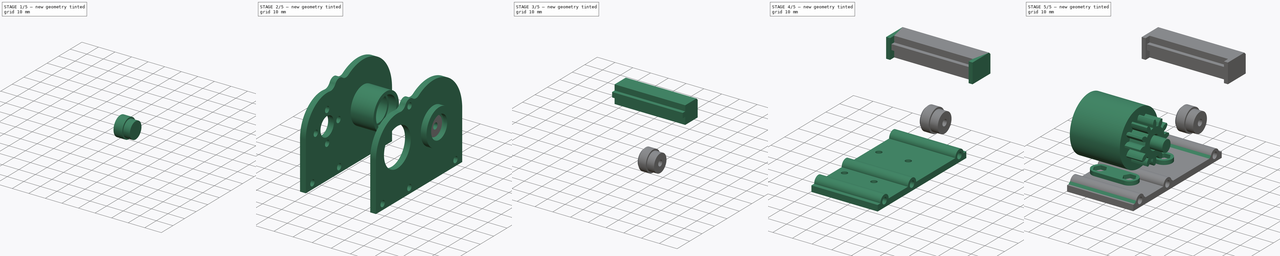
[diagram: build sequence overview — one tinted view per stage of 5, left to right]
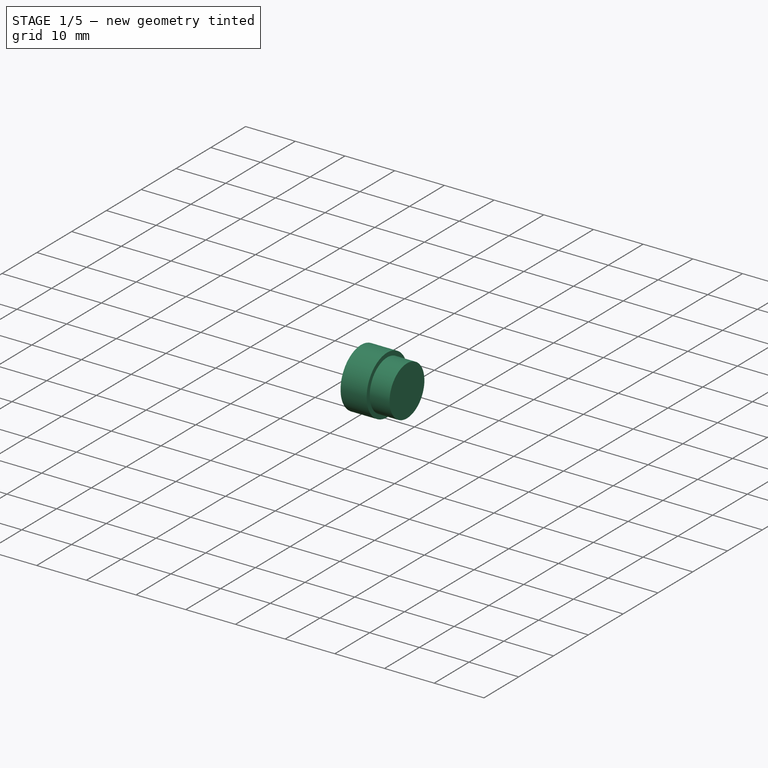
[diagram: stage 1 of 5 — iso view after this stage's code; geometry added in this stage tinted green]
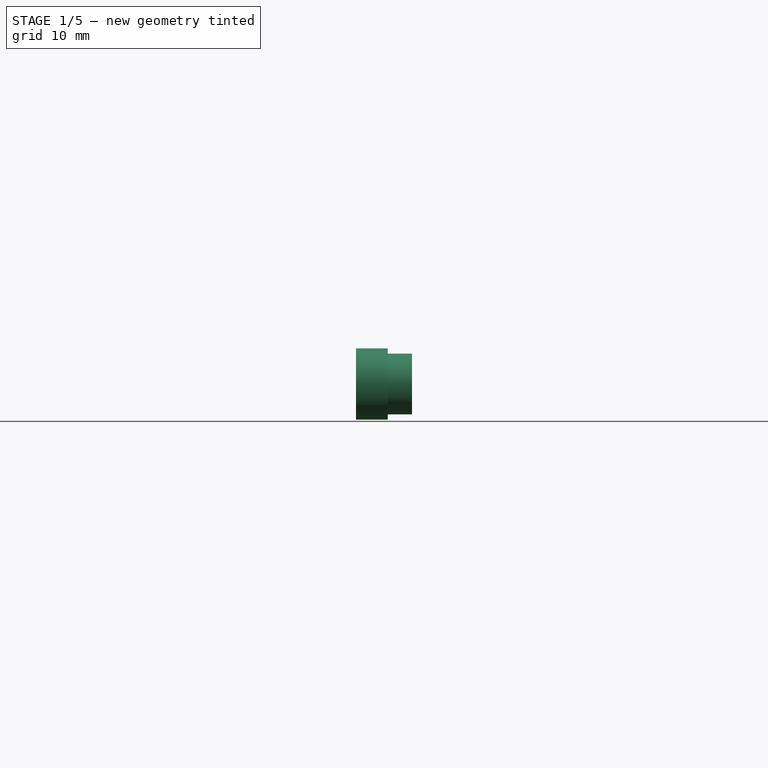
[diagram: stage 1 of 5 — front view after this stage's code; geometry added in this stage tinted green]
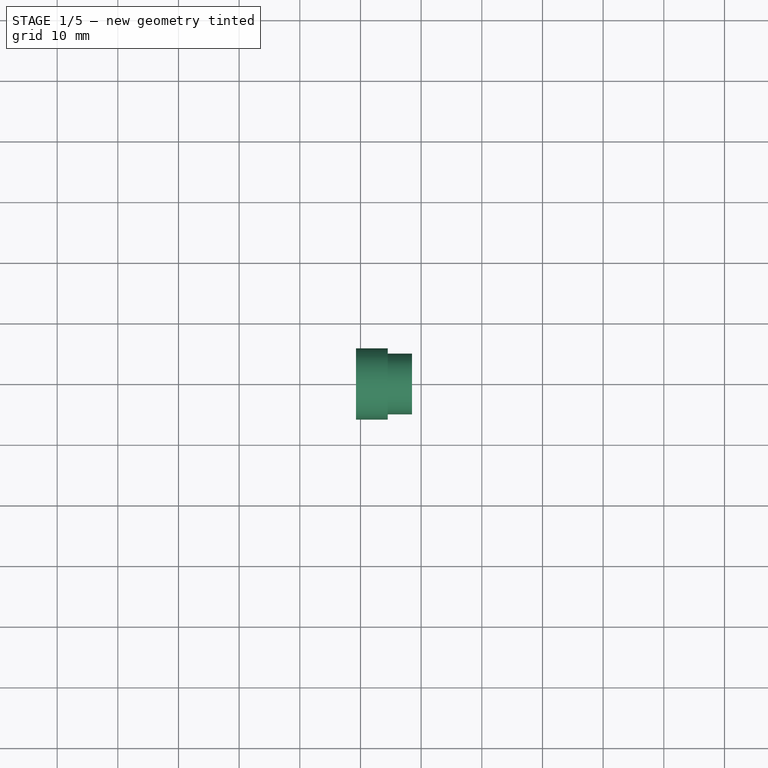
[diagram: stage 1 of 5 — top view after this stage's code; geometry added in this stage tinted green]
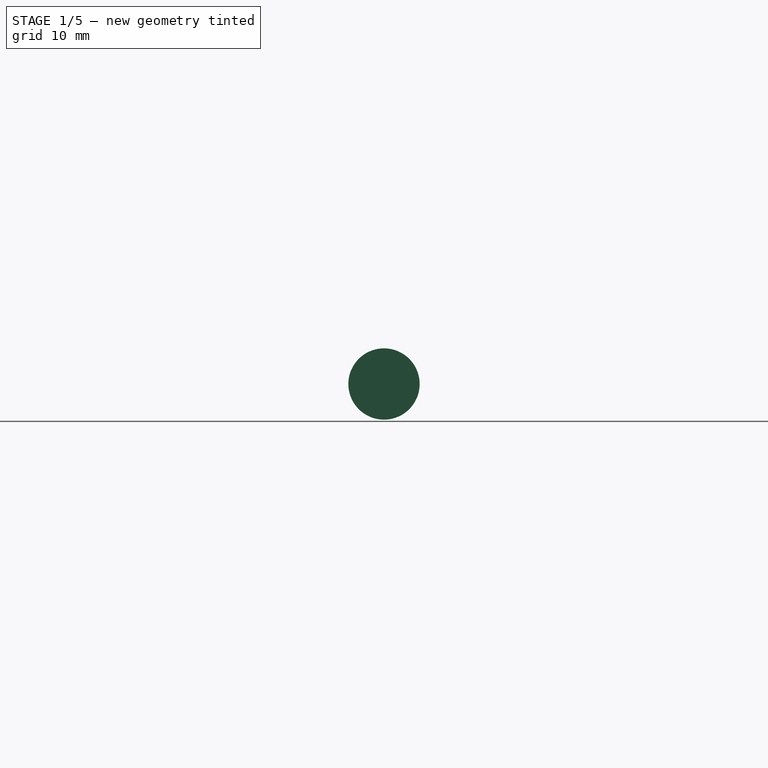
[diagram: stage 1 of 5 — right view after this stage's code; geometry added in this stage tinted green]
FCSTD DOCUMENT  (FreeCAD 2023.131R26244 +5365 (Git))
Label: gearbox_v2
License: All rights reserved
LicenseURL: http://en.wikipedia.org/wiki/All_rights_reserved
objects: Sketcher::SketchObject×35, PartDesign::Pad×24, Part::SubShapeBinder×14, PartDesign::Pocket×9, PartDesign::Body×9, PartDesign::Chamfer×6, PartDesign::SubShapeBinder×5, PartDesign::FeaturePython×3, PartDesign::Plane×3, PartDesign::Revolution×1, PartDesign::Fillet×1
note: 230 computed .brp shape members not serialized (recipe doc carries the construction recipe); baked Part::Feature solids carry a one-line shape summary decoded from their .brp

FEATURE [PartDesign::FeaturePython] TimingGear  label="belt_driver"  # WARN: FeaturePython — macro-defined, semantics opaque (R4)
  AttacherType = Attacher::AttachEngine3D
  AttachmentOffset = pos=(0,0,-3.25) rot=(0,0,1;0rad)
  AttachmentSupport = -> [YZ_Plane]
  FixShape = 1
  InvalidShape = false
  MapMode = 5
  NewSolid = false
  Placement = pos=(-3.25,7e-16,-7e-16) rot=(0.57735,0.57735,0.57735;2.0944rad)
  Support = -> [YZ_Plane]
  Suppress = false
  TreeRank = 11
  ValidateShape = false
  h = 0.75
  height = 6.5
  offset = 0.4
  pitch = 2
  r0 = 0.555
  r1 = 1
  rs = 0.15
  teeth = 20
  type = 0
  u = 0.254
  version = 0.0.4
  expr: AttachmentOffset.Base.z = -6.5 / 2
FEATURE [Sketcher::SketchObject] Sketch
  ArcFitTolerance = 1e-06
  AttachmentSupport = -> [XZ_Plane]
  ExternalBSplineMaxDegree = 5
  ExternalBSplineTolerance = 0.0001
  ExternalGeometry = -> [TimingGear]
  FixShape = 1
  FullyConstrained = true
  InternalTolerance = 1e-06
  InvalidShape = false
  MakeInternals = false
  MapMode = 5
  Placement = pos=(0,0,0) rot=(1,0,0;1.5708rad)
  Support = -> [XZ_Plane]
  TreeRank = 12
  ValidateShape = false
  sketch-geometry (8):
    g0: LineSegment StartX=3.25 StartY=0 StartZ=0 EndX=3.25 EndY=7 EndZ=0
    g1: LineSegment StartX=3.25 StartY=7 StartZ=0 EndX=6.25 EndY=8.73205 EndZ=0
    g2: LineSegment StartX=6.25 StartY=8.73205 StartZ=0 EndX=6.25 EndY=0 EndZ=0
    g3: LineSegment StartX=6.25 StartY=0 StartZ=0 EndX=3.25 EndY=0 EndZ=0
    g4: LineSegment StartX=-3.25 StartY=0 StartZ=0 EndX=-3.25 EndY=7 EndZ=0
    g5: LineSegment StartX=-3.25 StartY=7 StartZ=0 EndX=-6.25 EndY=8.73205 EndZ=0
    g6: LineSegment StartX=-6.25 StartY=8.73205 StartZ=0 EndX=-6.25 EndY=0 EndZ=0
    g7: LineSegment StartX=-6.25 StartY=0 StartZ=0 EndX=-3.25 EndY=0 EndZ=0
  constraints (24):
    c: PointOnObject(g0,g-1)
    c: Vertical(g0)
    c: Coincident(g1,g0)
    c: Coincident(g2,g1)
    c: PointOnObject(g2,g-1)
    c: Vertical(g2)
    c: Coincident(g3,g2)
    c: Coincident(g3,g0)
    c: PointOnObject(g4,g-1)
    c: Vertical(g4)
    c: Coincident(g5,g4)
    c: Coincident(g6,g5)
    c: PointOnObject(g6,g-1)
    c: Vertical(g6)
    c: Coincident(g7,g6)
    c: Coincident(g7,g4)
    c: PointOnObject(g0,g-4)
    c: PointOnObject(g4,g-3)
    c: Horizontal(g4,g0)
    c: Horizontal(g5,g1)
    c: Equal(g1,g5)
    c: DistanceY(g4,g4) = 7
    c: DistanceX(g7,g7) = 3
    c: Angle(g6,g5) = 1.0472
FEATURE [PartDesign::Revolution] Revolution
  AddSubType = 0
  Angle = 360
  Axis = (1,0,0)
  Base = (0,0,0)
  BaseFeature = -> TimingGear
  ClaimChildren = false
  Fit = 0
  FitJoin = 0
  FixShape = 1
  InnerFit = 0
  InnerFitJoin = 0
  InvalidShape = false
  Linearize = true
  NewSolid = false
  Profile = -> Sketch
  ReferenceAxis = -> Sketch [H_Axis]
  Refine = true
  Suppress = false
  TreeRank = 13
  ValidateShape = false
  _ProfileBasedVersion = 1
FEATURE [Sketcher::SketchObject] Sketch001  label="center_side_ref"
  ArcFitTolerance = 1e-06
  AttachmentSupport = -> [Revolution]
  ExternalBSplineMaxDegree = 5
  ExternalBSplineTolerance = 0.0001
  FixShape = 1
  FullyConstrained = false
  InternalTolerance = 1e-06
  InvalidShape = false
  MakeInternals = false
  MapMode = 5
  Placement = pos=(6.25,0,0) rot=(0.57735,0.57735,0.57735;2.0944rad)
  Support = -> [Revolution]
  TreeRank = 14
  ValidateShape = false
  sketch-geometry (1):
    g0: LineSegment StartX=0 StartY=0 StartZ=0 EndX=11.4538 EndY=0 EndZ=0
  constraints (2):
    c: Coincident(g0,g-1)
    c: PointOnObject(g0,g-1)
FEATURE [PartDesign::Plane] DatumPlane  label="big_gear_start"
  AttachmentSupport = -> [Sketch001,YZ_Plane]
  FixShape = 1
  InvalidShape = false
  Length = 12.1332
  MapMode = 6
  MinimumLength = 10
  MinimumWidth = 10
  Placement = pos=(6.25,0,0) rot=(0,1,0;1.5708rad)
  ResizeMode = 0
  Support = -> [Sketch001,YZ_Plane]
  TreeRank = 15
  ValidateShape = false
  Width = 12.1338
FEATURE [PartDesign::FeaturePython] InvoluteGear  label="big_gear"  # WARN: FeaturePython — macro-defined, semantics opaque (R4)
  AttacherType = Attacher::AttachEngine3D
  AttachmentSupport = -> [DatumPlane]
  BaseFeature = -> Revolution
  FixShape = 1
  InvalidShape = false
  MapMode = 5
  NewSolid = false
  Placement = pos=(6.25,0,0) rot=(0,1,0;1.5708rad)
  Support = -> [DatumPlane]
  Suppress = false
  TreeRank = 16
  ValidateShape = false
  angular_backlash = 0
  backlash = 0
  beta = 0
  clearance = 0.25
  da = 39
  df = 32.25
  double_helix = true
  dw = 36
  head = 0
  head_fillet = 0
  height = 8
  module = 1.5
  numpoints = 6
  pressure_angle = 20
  properties_from_tool = false
  reversed_backlash = false
  root_fillet = 0
  shift = 0
  simple = false
  teeth = 24
  transverse_pitch = 4.71239
  traverse_module = 1.5
  undercut = false
  version = 0.0.4
  expr: angular_backlash = backlash / dw * 360° / pi
FEATURE [Sketcher::SketchObject] Sketch002
  ArcFitTolerance = 1e-06
  AttachmentSupport = -> [InvoluteGear]
  ExternalBSplineMaxDegree = 5
  ExternalBSplineTolerance = 0.0001
  FixShape = 1
  FullyConstrained = true
  InternalTolerance = 1e-06
  InvalidShape = false
  MakeInternals = false
  MapMode = 5
  Placement = pos=(-6.25,0,0) rot=(0.707107,0,-0.707107;3.14159rad)
  Support = -> [InvoluteGear]
  TreeRank = 17
  ValidateShape = false
  sketch-geometry (1):
    g0: Circle CenterX=0 CenterY=0 CenterZ=0 NormalX=0 NormalY=0 NormalZ=1 AngleXU=0 Radius=6
  constraints (2):
    c: Coincident(g0,g-1)
    c: Diameter(g0) = 12
FEATURE [PartDesign::Pad] Pad  label="bearing_washer"
  AddSubType = 0
  AlongSketchNormal = false
  AutoTaperInnerAngle = true
  BaseFeature = -> InvoluteGear
  CheckUpToFaceLimits = true
  ClaimChildren = false
  Direction = (-1,0,-2e-16)
  Fit = 0
  FitJoin = 0
  FixShape = 1
  InnerFit = 0
  InnerFitJoin = 0
  InvalidShape = false
  Length = 1
  Length2 = 100
  Linearize = true
  NewSolid = false
  Profile = -> Sketch002
  Refine = true
  Suppress = false
  TaperInnerAngle = 0
  TaperInnerAngleRev = 0
  TreeRank = 18
  Type = 0
  ValidateShape = false
  _ProfileBasedVersion = 1
FEATURE [Sketcher::SketchObject] Sketch003
  ArcFitTolerance = 1e-06
  AttachmentSupport = -> [Pad]
  ExternalBSplineMaxDegree = 5
  ExternalBSplineTolerance = 0.0001
  FixShape = 1
  FullyConstrained = true
  InternalTolerance = 1e-06
  InvalidShape = false
  MakeInternals = false
  MapMode = 5
  Placement = pos=(-7.25,0,-1.4e-15) rot=(-0.57735,0.57735,0.57735;4.18879rad)
  Support = -> [Pad]
  TreeRank = 19
  ValidateShape = false
  sketch-geometry (1):
    g0: Circle CenterX=0 CenterY=0 CenterZ=0 NormalX=0 NormalY=0 NormalZ=1 AngleXU=0 Radius=5
  constraints (2):
    c: Coincident(g0,g-1)
    c: Diameter(g0) = 10
FEATURE [PartDesign::Pad] Pad001  label="bearing_inner_tube"
  AddSubType = 0
  AlongSketchNormal = false
  AutoTaperInnerAngle = true
  BaseFeature = -> Pad
  CheckUpToFaceLimits = true
  ClaimChildren = false
  Direction = (-1,-1e-16,-1e-16)
  Fit = 0
  FitJoin = 0
  FixShape = 1
  InnerFit = 0
  InnerFitJoin = 0
  InvalidShape = false
  Length = 4
  Length2 = 100
  Linearize = true
  NewSolid = false
  Profile = -> Sketch003
  Refine = true
  Suppress = false
  TaperInnerAngle = 0
  TaperInnerAngleRev = 0
  TreeRank = 20
  Type = 0
  ValidateShape = false
  _ProfileBasedVersion = 1
FEATURE [Sketcher::SketchObject] Sketch004
  ArcFitTolerance = 1e-06
  AttachmentSupport = -> [Pad001]
  ExternalBSplineMaxDegree = 5
  ExternalBSplineTolerance = 0.0001
  FixShape = 1
  FullyConstrained = true
  InternalTolerance = 1e-06
  InvalidShape = false
  MakeInternals = false
  MapMode = 5
  Placement = pos=(14.25,-1.6e-15,3.2e-15) rot=(0.57735,0.57735,0.57735;2.0944rad)
  Support = -> [Pad001]
  TreeRank = 21
  ValidateShape = false
  sketch-geometry (1):
    g0: Circle CenterX=0 CenterY=0 CenterZ=0 NormalX=0 NormalY=0 NormalZ=1 AngleXU=0 Radius=6
  constraints (2):
    c: Coincident(g0,g-1)
    c: Diameter(g0) = 12
FEATURE [PartDesign::Pocket] Pocket  label="axle_hole"
  AddSubType = 1
  AutoTaperInnerAngle = true
  BaseFeature = -> Pad001
  CheckUpToFaceLimits = true
  ClaimChildren = false
  Fit = 0
  FitJoin = 0
  FixShape = 1
  InnerFit = 0
  InnerFitJoin = 0
  InvalidShape = false
  Length = 5
  Length2 = 100
  Linearize = true
  NewSolid = false
  Profile = -> Sketch004
  Refine = true
  Suppress = false
  TaperInnerAngle = 0
  TaperInnerAngleRev = 0
  TreeRank = 22
  Type = 0
  ValidateShape = false
  _ProfileBasedVersion = 1
  _Version = 1
FEATURE [Part::SubShapeBinder] Import009  label="Import009(Pad007)"
  BindCopyOnChange = 0
  BindMode = 0
  ClaimChildren = false
  Context = -> Body006 [Import009.]
  EdgeTolerance = 1e-06
  FillStyle = 0
  FixShape = 1
  Fuse = false
  InvalidShape = false
  MakeFace = false
  MergeEdges = true
  OffsetFill = false
  OffsetIntersection = false
  OffsetJoinType = 0
  OffsetOpenResult = false
  Outline = false
  PartialLoad = false
  Relative = true
  SplitEdges = false
  Support = -> [Body003[Pad007.]]
  TightBound = false
  TreeRank = 134
  ValidateShape = false
  _Version = 8
FEATURE [Sketcher::SketchObject] Sketch021
  ArcFitTolerance = 1e-06
  AttachmentSupport = -> [Import009]
  ExternalBSplineMaxDegree = 5
  ExternalBSplineTolerance = 0.0001
  FixShape = 1
  FullyConstrained = true
  InternalTolerance = 1e-06
  InvalidShape = false
  MakeInternals = false
  MapMode = 5
  Placement = pos=(18.5,-6.3e-15,4.4e-15) rot=(-0.57735,0.57735,0.57735;4.18879rad)
  Support = -> [Import009]
  TreeRank = 135
  ValidateShape = false
  sketch-geometry (1):
    g0: Circle CenterX=0 CenterY=0 CenterZ=0 NormalX=0 NormalY=0 NormalZ=1 AngleXU=0 Radius=5
  constraints (2):
    c: Coincident(g0,g-1)
    c: Diameter(g0) = 10
FEATURE [PartDesign::Pad] Pad013
  AddSubType = 0
  AlongSketchNormal = false
  AutoTaperInnerAngle = true
  CheckUpToFaceLimits = true
  ClaimChildren = false
  Direction = (-1,3e-16,-1e-16)
  Fit = 0
  FitJoin = 0
  FixShape = 1
  InnerFit = 0
  InnerFitJoin = 0
  InvalidShape = false
  Length = 4
  Length2 = 100
  Linearize = true
  NewSolid = false
  Profile = -> Sketch021
  Refine = true
  Suppress = false
  TaperInnerAngle = 0
  TaperInnerAngleRev = 0
  TreeRank = 136
  Type = 0
  ValidateShape = false
  _ProfileBasedVersion = 1
FEATURE [Part::SubShapeBinder] Import010  label="Import010(axle_hole)"
  BindCopyOnChange = 0
  BindMode = 0
  ClaimChildren = false
  Context = -> Body006 [Import010.]
  EdgeTolerance = 1e-06
  FillStyle = 0
  FixShape = 1
  Fuse = false
  InvalidShape = false
  MakeFace = false
  MergeEdges = true
  OffsetFill = false
  OffsetIntersection = false
  OffsetJoinType = 0
  OffsetOpenResult = false
  Outline = false
  PartialLoad = false
  Relative = true
  SplitEdges = false
  Support = -> [Body[Pocket.]]
  TightBound = false
  TreeRank = 138
  ValidateShape = false
  _Version = 8
FEATURE [Sketcher::SketchObject] Sketch022
  ArcFitTolerance = 1e-06
  AttachmentSupport = -> [Pad013]
  ExternalBSplineMaxDegree = 5
  ExternalBSplineTolerance = 0.0001
  ExternalGeometry = -> [Import010]
  FixShape = 1
  FullyConstrained = true
  InternalTolerance = 1e-06
  InvalidShape = false
  MakeInternals = false
  MapMode = 5
  Placement = pos=(14.5,-6.8e-15,0) rot=(-0.57735,0.57735,0.57735;4.18879rad)
  Support = -> [Pad013]
  TreeRank = 137
  ValidateShape = false
  sketch-geometry (1):
    g0: Circle CenterX=0 CenterY=0 CenterZ=0 NormalX=0 NormalY=0 NormalZ=1 AngleXU=0 Radius=5.875
  constraints (2):
    c: Coincident(g0,g-3)
    c: Diameter(g0) = 11.75
FEATURE [PartDesign::SubShapeBinder] Import011  label="Import011(axle_hole)"
  BindCopyOnChange = 0
  BindMode = 0
  ClaimChildren = false
  Context = -> Body006 [Import011.]
  EdgeTolerance = 1e-06
  FillStyle = 0
  FixShape = 1
  Fuse = false
  InvalidShape = false
  MakeFace = false
  MergeEdges = true
  OffsetFill = false
  OffsetIntersection = false
  OffsetJoinType = 0
  OffsetOpenResult = false
  Outline = false
  PartialLoad = false
  Relative = true
  SplitEdges = false
  Support = -> [Body[Pocket.Face277]]
  TightBound = false
  TreeRank = 140
  ValidateShape = false
  _Version = 8
FEATURE [PartDesign::Pad] Pad014
  AddSubType = 0
  AlongSketchNormal = false
  AutoTaperInnerAngle = true
  BaseFeature = -> Pad013
  CheckUpToFaceLimits = true
  ClaimChildren = false
  Direction = (-1,4e-16,0)
  Fit = 0
  FitJoin = 0
  FixShape = 1
  InnerFit = 0
  InnerFitJoin = 0
  InvalidShape = false
  Length = 10
  Length2 = 100
  Linearize = true
  NewSolid = false
  Profile = -> Sketch022
  Refine = true
  Suppress = false
  TaperInnerAngle = 0
  TaperInnerAngleRev = 0
  TreeRank = 139
  Type = 3
  UpToFace = -> Import011
  ValidateShape = false
  _ProfileBasedVersion = 1
FEATURE [PartDesign::Body] Body008  label="tensioner_plate"
  AutoGroupSolids = false
  ClaimAllChildren = false
  ExportMode = 0
  FixShape = 1
  Group = -> [Sketch030,Import016,Import017,Import018,Pad019,Sketch031,Pad020,Sketch032,Pocket006,Chamfer004,Chamfer005,Sketch033,Pad021,Pad022,Sketch034,Pad023]
  InvalidShape = false
  Origin = -> Origin008
  Tip = -> Pad023
  TreeRank = 199
  ValidateShape = false
  _ExportChildren = -> [Import016,Import017,Import018,Pad019,Pad020,Pocket006,Chamfer004,Chamfer005,Pad021,Pad022,Pad023]
  _GroupVersion = 1
FEATURE [Sketcher::SketchObject] Sketch035
  ArcFitTolerance = 1e-06
  AttachmentSupport = -> [YZ_Plane]
  ExternalBSplineMaxDegree = 5
  ExternalBSplineTolerance = 0.0001
  FixShape = 1
  FullyConstrained = true
  InternalTolerance = 1e-06
  InvalidShape = false
  MakeInternals = false
  MapMode = 5
  Placement = pos=(0,0,0) rot=(0.57735,0.57735,0.57735;2.0944rad)
  Support = -> [YZ_Plane]
  TreeRank = 216
  ValidateShape = false
  sketch-geometry (1):
    g0: Circle CenterX=0 CenterY=0 CenterZ=0 NormalX=0 NormalY=0 NormalZ=1 AngleXU=0 Radius=1.6
  constraints (2):
    c: Coincident(g0,g-1)
    c: Diameter(g0) = 3.2
FEATURE [PartDesign::Pocket] Pocket007
  AddSubType = 1
  AutoTaperInnerAngle = true
  BaseFeature = -> Pocket
  CheckUpToFaceLimits = true
  ClaimChildren = false
  Fit = 0
  FitJoin = 0
  FixShape = 1
  InnerFit = 0
  InnerFitJoin = 0
  InvalidShape = false
  Length = 5
  Length2 = 100
  Linearize = true
  Midplane = true
  NewSolid = false
  Profile = -> Sketch035
  Refine = true
  Suppress = false
  TaperInnerAngle = 0
  TaperInnerAngleRev = 0
  TreeRank = 217
  Type = 1
  ValidateShape = false
  _ProfileBasedVersion = 1
  _Version = 1
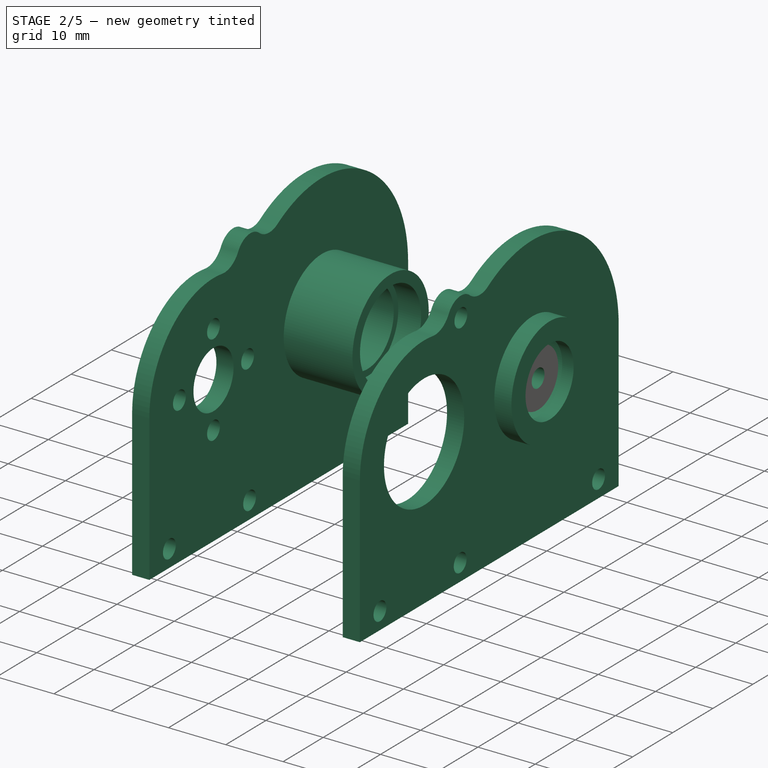
[diagram: stage 2 of 5 — iso view after this stage's code; geometry added in this stage tinted green]
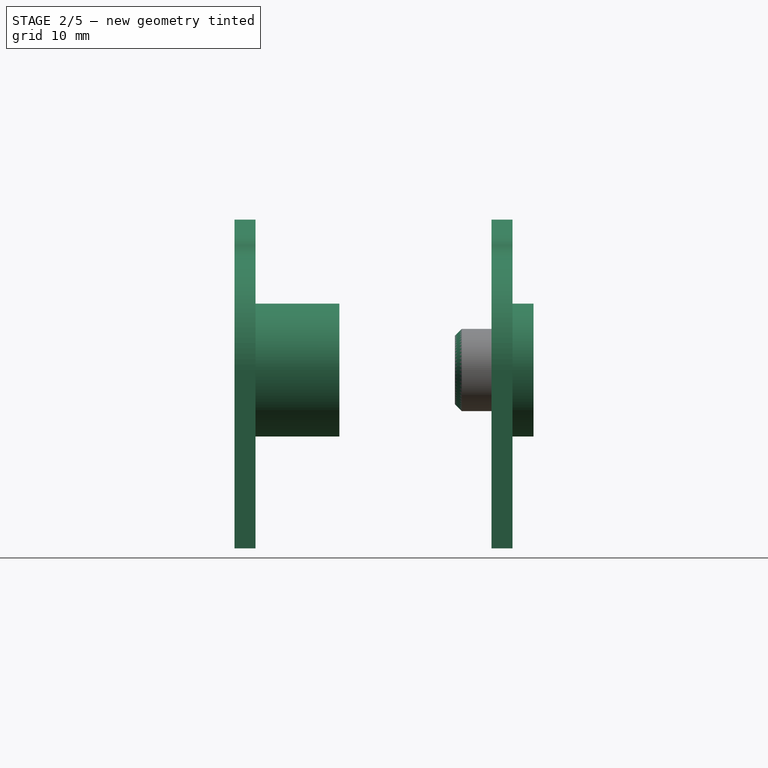
[diagram: stage 2 of 5 — front view after this stage's code; geometry added in this stage tinted green]
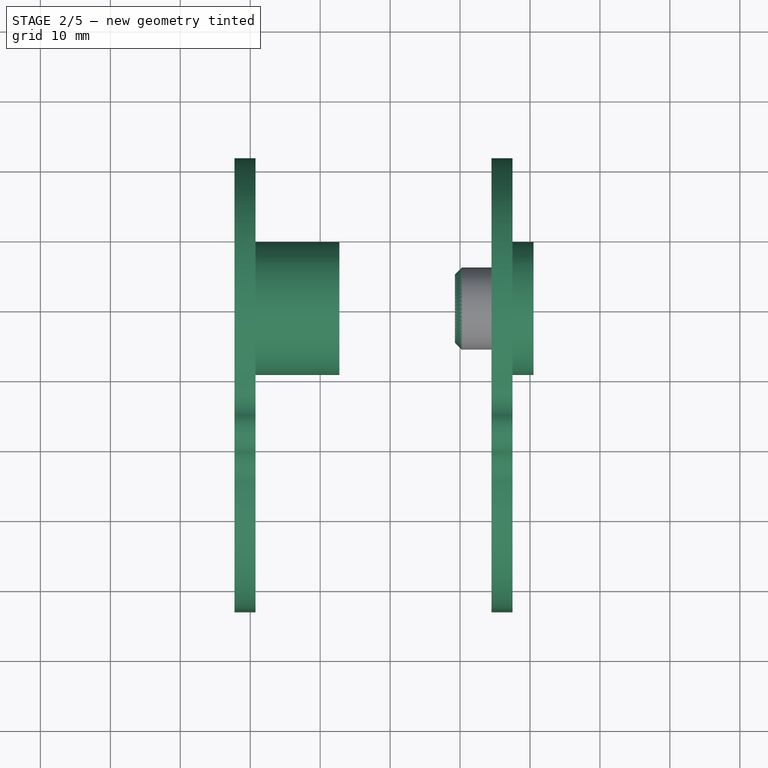
[diagram: stage 2 of 5 — top view after this stage's code; geometry added in this stage tinted green]
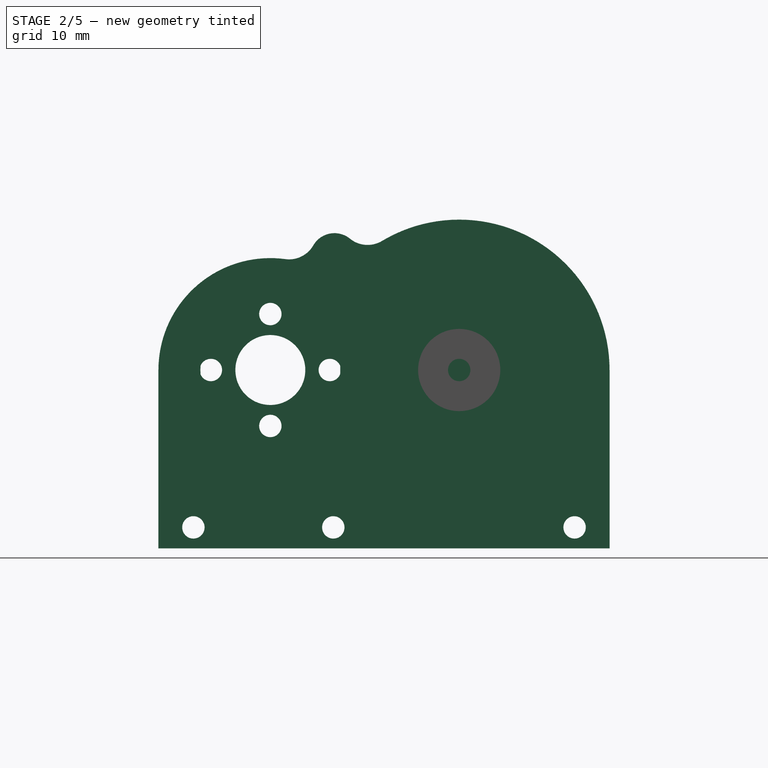
[diagram: stage 2 of 5 — right view after this stage's code; geometry added in this stage tinted green]
FEATURE [PartDesign::Body] Body002  label="motor"
  AutoGroupSolids = false
  ClaimAllChildren = false
  ExportMode = 0
  FixShape = 1
  Group = -> [Import,Sketch008,Pad002,Sketch009,Pad003,Sketch010,Pad004]
  InvalidShape = false
  Origin = -> Origin002
  Tip = -> Pad004
  TreeRank = 50
  ValidateShape = false
  _ExportChildren = -> [Import,Pad002,Pad003,Pad004]
  _GroupVersion = 1
FEATURE [Part::SubShapeBinder] Import001  label="Import001(Pad004)"
  BindCopyOnChange = 0
  BindMode = 0
  ClaimChildren = false
  Context = -> Body003 [Import001.]
  EdgeTolerance = 1e-06
  FillStyle = 0
  FixShape = 1
  Fuse = false
  InvalidShape = false
  MakeFace = false
  MergeEdges = true
  OffsetFill = false
  OffsetIntersection = false
  OffsetJoinType = 0
  OffsetOpenResult = false
  Outline = false
  PartialLoad = false
  Relative = true
  SplitEdges = false
  Support = -> [Body002[Pad004.]]
  TightBound = false
  TreeRank = 70
  ValidateShape = false
  _Version = 8
FEATURE [Sketcher::SketchObject] Sketch011
  ArcFitTolerance = 1e-06
  AttachmentOffset = pos=(0,0,0.25) rot=(0,0,1;0rad)
  AttachmentSupport = -> [DatumPlane001]
  ExternalBSplineMaxDegree = 5
  ExternalBSplineTolerance = 0.0001
  ExternalGeometry = -> [Import001]
  FixShape = 1
  FullyConstrained = true
  InternalTolerance = 1e-06
  InvalidShape = false
  MakeInternals = false
  MapMode = 5
  Placement = pos=(14.5,-1.6e-15,3.2e-15) rot=(0.57735,0.57735,0.57735;2.0944rad)
  Support = -> [DatumPlane001]
  TreeRank = 69
  ValidateShape = false
  expr: Constraints[12] = <<big_gear>>.da
  sketch-geometry (21):
    g0: ArcOfCircle CenterX=0 CenterY=0 CenterZ=0 NormalX=0 NormalY=0 NormalZ=1 AngleXU=0 Radius=21.5 StartAngle=0 EndAngle=2.10999
    g1: ArcOfCircle CenterX=-27 CenterY=0 CenterZ=0 NormalX=0 NormalY=0 NormalZ=1 AngleXU=0 Radius=16 StartAngle=1.43649 EndAngle=3.14159
    g2: LineSegment StartX=-43 StartY=0 StartZ=0 EndX=-43 EndY=-25.5 EndZ=0
    g3: LineSegment StartX=21.5 StartY=0 StartZ=0 EndX=21.5 EndY=-25.5 EndZ=0
    g4: LineSegment StartX=-43 StartY=-25.5 StartZ=0 EndX=21.5 EndY=-25.5 EndZ=0
    g5: Circle [constr] CenterX=0 CenterY=0 CenterZ=0 NormalX=0 NormalY=0 NormalZ=1 AngleXU=0 Radius=19.5
    g6: LineSegment [constr] StartX=0 StartY=-19.5 StartZ=0 EndX=0 EndY=-25.5 EndZ=0
    g7: LineSegment [constr] StartX=0 StartY=19.5 StartZ=0 EndX=0 EndY=21.5 EndZ=0
    g8: LineSegment [constr] StartX=-27 StartY=14 StartZ=0 EndX=-27 EndY=16 EndZ=0
    g9: Circle [constr] CenterX=-17.8287 CenterY=16.0667 CenterZ=0 NormalX=0 NormalY=0 NormalZ=1 AngleXU=0 Radius=3.5
    g10: Circle CenterX=-27 CenterY=0 CenterZ=0 NormalX=0 NormalY=0 NormalZ=1 AngleXU=0 Radius=10
    g11: Circle CenterX=0 CenterY=0 CenterZ=0 NormalX=0 NormalY=0 NormalZ=1 AngleXU=0 Radius=7.625
    g12: Circle CenterX=-17.8287 CenterY=16.0667 CenterZ=0 NormalX=0 NormalY=0 NormalZ=1 AngleXU=0 Radius=1.6
    g13: Circle CenterX=-38 CenterY=-22.5 CenterZ=0 NormalX=0 NormalY=0 NormalZ=1 AngleXU=0 Radius=1.6
    g14: Circle CenterX=-18 CenterY=-22.5 CenterZ=0 NormalX=0 NormalY=0 NormalZ=1 AngleXU=0 Radius=1.6
    g15: Circle CenterX=16.5 CenterY=-22.5 CenterZ=0 NormalX=0 NormalY=0 NormalZ=1 AngleXU=0 Radius=1.6
    g16: LineSegment [constr] StartX=-15.2287 StartY=13.7236 StartZ=0 EndX=-14.4858 EndY=13.0542 EndZ=0
    g17: LineSegment [constr] StartX=-19.5638 StartY=13.027 StartZ=0 EndX=-20.0596 EndY=12.1585 EndZ=0
    g18: ArcOfCircle CenterX=-24.322 CenterY=19.8199 CenterZ=0 NormalX=0 NormalY=0 NormalZ=1 AngleXU=0 Radius=4 StartAngle=4.57809 EndAngle=5.75909
    g19: ArcOfCircle CenterX=-17.8287 CenterY=16.0667 CenterZ=0 NormalX=0 NormalY=0 NormalZ=1 AngleXU=0 Radius=3.5 StartAngle=0.887357 EndAngle=2.61749
    g20: ArcOfCircle CenterX=-13.0927 CenterY=21.8822 CenterZ=0 NormalX=0 NormalY=0 NormalZ=1 AngleXU=0 Radius=4 StartAngle=4.02895 EndAngle=5.25158
  constraints (63):
    c: Coincident(g0,g-1)
    c: PointOnObject(g0,g-1)
    c: Coincident(g1,g-3)
    c: PointOnObject(g1,g-1)
    c: Coincident(g2,g1)
    c: Vertical(g2)
    c: Coincident(g3,g0)
    c: Vertical(g3)
    c: Coincident(g4,g2)
    c: Coincident(g4,g3)
    c: Horizontal(g4)
    c: Coincident(g5,g0)
    c: Diameter(g5) = 39
    c: PointOnObject(g6,g5)
    c: PointOnObject(g6,g4)
    c: Vertical(g6)
    c: PointOnObject(g6,g-2)
    c: DistanceY(g6,g6) = 6
    c: PointOnObject(g7,g5)
    c: PointOnObject(g7,g0)
    c: Vertical(g7)
    c: Perpendicular(g5,g7)
    c: PointOnObject(g8,g-3)
    c: PointOnObject(g8,g1)
    c: Vertical(g8)
    c: Perpendicular(g-3,g8)
    c: Equal(g8,g7)
    c: DistanceY(g8,g8) = 2
    c: Diameter(g9) = 7
    c: Coincident(g10,g1)
    c: Diameter(g10) = 20
    c: Coincident(g11,g0)
    c: Diameter(g11) = 15.25
    c: Diameter(g12) = 3.2
    c: Horizontal(g13,g14)
    c: Equal(g13,g14)
    c: Equal(g14,g15)
    c: Diameter(g13) = 3.2
    c: DistanceX(g15,g3) = 5
    c: DistanceX(g2,g13) = 5
    c: DistanceY(g2,g13) = 3
    c: Horizontal(g15,g14)
    c: PointOnObject(g16,g9)
    c: PointOnObject(g16,g5)
    c: PointOnObject(g17,g9)
    c: PointOnObject(g17,g-3)
    c: Perpendicular(g9,g17)
    c: Perpendicular(g-3,g17)
    c: Perpendicular(g9,g16)
    c: Perpendicular(g5,g16)
    c: Equal(g16,g17)
    c: Distance(g16) = 1
    c: Coincident(g12,g9)
    c: PointOnObject(g18,g9)
    c: PointOnObject(g19,g9)
    c: Equal(g9,g19)
    c: Tangent(g19,g18) = 1.5708
    c: Tangent(g18,g1) = 1.5708
    c: Tangent(g20,g19) = 1.5708
    c: Tangent(g20,g0) = 1.5708
    c: Equal(g20,g18)
    c: Radius(g18) = 4
    c: DistanceX(g13,g14) = 20
FEATURE [PartDesign::Pad] Pad005
  AddSubType = 0
  AlongSketchNormal = false
  AutoTaperInnerAngle = true
  CheckUpToFaceLimits = true
  ClaimChildren = false
  Direction = (1,-2e-16,2e-16)
  Fit = 0
  FitJoin = 0
  FixShape = 1
  InnerFit = 0
  InnerFitJoin = 0
  InvalidShape = false
  Length = 3
  Length2 = 100
  Linearize = true
  NewSolid = false
  Profile = -> Sketch011
  Refine = true
  Suppress = false
  TaperInnerAngle = 0
  TaperInnerAngleRev = 0
  TreeRank = 71
  Type = 0
  ValidateShape = false
  _ProfileBasedVersion = 1
FEATURE [Sketcher::SketchObject] Sketch012
  ArcFitTolerance = 1e-06
  AttachmentSupport = -> [Pad005]
  ExternalBSplineMaxDegree = 5
  ExternalBSplineTolerance = 0.0001
  ExternalGeometry = -> [Pad005]
  FixShape = 1
  FullyConstrained = true
  InternalTolerance = 1e-06
  InvalidShape = false
  MakeInternals = false
  MapMode = 5
  Placement = pos=(17.5,-3.9e-15,4e-15) rot=(0.57735,0.57735,0.57735;2.0944rad)
  Support = -> [Pad005]
  TreeRank = 72
  ValidateShape = false
  sketch-geometry (1):
    g0: Circle CenterX=0 CenterY=0 CenterZ=0 NormalX=0 NormalY=0 NormalZ=1 AngleXU=0 Radius=9.5
  constraints (2):
    c: Coincident(g0,g-3)
    c: Diameter(g0) = 19
FEATURE [PartDesign::Pad] Pad006
  AddSubType = 0
  AlongSketchNormal = false
  AutoTaperInnerAngle = true
  BaseFeature = -> Pad005
  CheckUpToFaceLimits = true
  ClaimChildren = false
  Direction = (1,-2e-16,2e-16)
  Fit = 0
  FitJoin = 0
  FixShape = 1
  InnerFit = 0
  InnerFitJoin = 0
  InvalidShape = false
  Length = 1
  Length2 = 100
  Linearize = true
  NewSolid = false
  Profile = -> Sketch012
  Refine = true
  Suppress = false
  TaperInnerAngle = 0
  TaperInnerAngleRev = 0
  TreeRank = 73
  Type = 0
  ValidateShape = false
  _ProfileBasedVersion = 1
FEATURE [Sketcher::SketchObject] Sketch013
  ArcFitTolerance = 1e-06
  AttachmentSupport = -> [Pad006]
  ExternalBSplineMaxDegree = 5
  ExternalBSplineTolerance = 0.0001
  ExternalGeometry = -> [Pad006]
  FixShape = 1
  FullyConstrained = true
  InternalTolerance = 1e-06
  InvalidShape = false
  MakeInternals = false
  MapMode = 5
  Placement = pos=(18.5,-5.5e-15,4.3e-15) rot=(0.57735,0.57735,0.57735;2.0944rad)
  Support = -> [Pad006]
  TreeRank = 74
  ValidateShape = false
  sketch-geometry (1):
    g0: Circle CenterX=0 CenterY=0 CenterZ=0 NormalX=0 NormalY=0 NormalZ=1 AngleXU=0 Radius=6
  constraints (2):
    c: Coincident(g0,g-3)
    c: Diameter(g0) = 12
FEATURE [PartDesign::Pad] Pad007
  AddSubType = 0
  AlongSketchNormal = false
  AutoTaperInnerAngle = true
  BaseFeature = -> Pad006
  CheckUpToFaceLimits = true
  ClaimChildren = false
  Direction = (1,-2e-16,2e-16)
  Fit = 0
  FitJoin = 0
  FixShape = 1
  InnerFit = 0
  InnerFitJoin = 0
  InvalidShape = false
  Length = 2
  Length2 = 100
  Linearize = true
  NewSolid = false
  Profile = -> Sketch013
  Refine = true
  Suppress = false
  TaperInnerAngle = 0
  TaperInnerAngleRev = 0
  TreeRank = 75
  Type = 0
  ValidateShape = false
  _ProfileBasedVersion = 1
FEATURE [Part::SubShapeBinder] Import002  label="Import002(Pad004)"
  BindCopyOnChange = 0
  BindMode = 0
  ClaimChildren = false
  Context = -> Body004 [Import002.]
  EdgeTolerance = 1e-06
  FillStyle = 0
  FixShape = 1
  Fuse = false
  InvalidShape = false
  MakeFace = false
  MergeEdges = true
  OffsetFill = false
  OffsetIntersection = false
  OffsetJoinType = 0
  OffsetOpenResult = false
  Outline = false
  PartialLoad = false
  Relative = true
  SplitEdges = false
  Support = -> [Body002[Pad004.]]
  TightBound = false
  TreeRank = 86
  ValidateShape = false
  _Version = 8
FEATURE [Part::SubShapeBinder] Import003  label="Import003(Pad007)"
  BindCopyOnChange = 0
  BindMode = 0
  ClaimChildren = false
  Context = -> Body004 [Import003.]
  EdgeTolerance = 1e-06
  FillStyle = 0
  FixShape = 1
  Fuse = false
  InvalidShape = false
  MakeFace = false
  MergeEdges = true
  OffsetFill = false
  OffsetIntersection = false
  OffsetJoinType = 0
  OffsetOpenResult = false
  Outline = false
  PartialLoad = false
  Relative = true
  SplitEdges = false
  Support = -> [Body003[Pad007.]]
  TightBound = false
  TreeRank = 88
  ValidateShape = false
  _Version = 8
FEATURE [Sketcher::SketchObject] Sketch014
  ArcFitTolerance = 1e-06
  AttachmentSupport = -> [Import002]
  ExternalBSplineMaxDegree = 5
  ExternalBSplineTolerance = 0.0001
  ExternalGeometry = -> [Import003]
  FixShape = 1
  FullyConstrained = true
  InternalTolerance = 1e-06
  InvalidShape = false
  MakeInternals = false
  MapMode = 5
  Placement = pos=(-19.25,1.31e-14,-7.1e-15) rot=(-0.57735,0.57735,0.57735;4.18879rad)
  Support = -> [Import002]
  TreeRank = 87
  ValidateShape = false
  sketch-geometry (8):
    g0: ArcOfCircle CenterX=8.42e-13 CenterY=-1.0664e-12 CenterZ=0 NormalX=0 NormalY=0 NormalZ=1 AngleXU=0 Radius=21.5 StartAngle=1.03161 EndAngle=3.14159
    g1: ArcOfCircle CenterX=27 CenterY=2e-16 CenterZ=0 NormalX=0 NormalY=0 NormalZ=1 AngleXU=0 Radius=16 StartAngle=1e-16 EndAngle=1.7051
    g2: LineSegment StartX=43 StartY=1.9e-15 StartZ=0 EndX=43 EndY=-25.5 EndZ=0
    g3: LineSegment StartX=43 StartY=-25.5 StartZ=0 EndX=-21.5 EndY=-25.5 EndZ=0
    g4: LineSegment StartX=-21.5 StartY=-25.5 StartZ=0 EndX=-21.5 EndY=0 EndZ=0
    g5: ArcOfCircle CenterX=13.0927 CenterY=21.8822 CenterZ=0 NormalX=0 NormalY=0 NormalZ=1 AngleXU=0 Radius=4 StartAngle=4.1732 EndAngle=5.39583
    g6: ArcOfCircle CenterX=24.322 CenterY=19.8199 CenterZ=0 NormalX=0 NormalY=0 NormalZ=1 AngleXU=0 Radius=4 StartAngle=3.66569 EndAngle=4.84669
    g7: ArcOfCircle CenterX=17.8287 CenterY=16.0667 CenterZ=0 NormalX=0 NormalY=0 NormalZ=1 AngleXU=0 Radius=3.5 StartAngle=0.524099 EndAngle=2.25424
  constraints (21):
    c: Coincident(g0,g-6)
    c: Coincident(g1,g-7)
    c: Coincident(g2,g1)
    c: Coincident(g2,g-4)
    c: Coincident(g3,g2)
    c: Coincident(g3,g-5)
    c: Coincident(g4,g3)
    c: Coincident(g4,g0)
    c: Equal(g0,g-6)
    c: Equal(g-7,g1)
    c: Coincident(g5,g-12)
    c: Coincident(g5,g-12)
    c: Coincident(g6,g-13)
    c: Coincident(g6,g-13)
    c: Coincident(g7,g6)
    c: Coincident(g7,g5)
    c: Equal(g-11,g7)
    c: Equal(g5,g-12)
    c: Equal(g6,g-13)
    c: Coincident(g1,g6)
    c: Coincident(g0,g5)
FEATURE [PartDesign::Pad] Pad008
  AddSubType = 0
  AlongSketchNormal = false
  AutoTaperInnerAngle = true
  CheckUpToFaceLimits = true
  ClaimChildren = false
  Direction = (-1,6e-16,-3e-16)
  Fit = 0
  FitJoin = 0
  FixShape = 1
  InnerFit = 0
  InnerFitJoin = 0
  InvalidShape = false
  Length = 3
  Length2 = 100
  Linearize = true
  NewSolid = true
  Profile = -> Sketch014
  Refine = true
  Suppress = false
  TaperInnerAngle = 0
  TaperInnerAngleRev = 0
  TreeRank = 89
  Type = 0
  ValidateShape = false
  _ProfileBasedVersion = 1
FEATURE [Sketcher::SketchObject] Sketch015
  ArcFitTolerance = 1e-06
  AttachmentSupport = -> [Pad008]
  ExternalBSplineMaxDegree = 5
  ExternalBSplineTolerance = 0.0001
  ExternalGeometry = -> [Import002]
  FixShape = 1
  FullyConstrained = true
  InternalTolerance = 1e-06
  InvalidShape = false
  MakeInternals = false
  MapMode = 5
  Placement = pos=(-22.25,1.45e-14,-7.1e-15) rot=(-0.57735,0.57735,0.57735;4.18879rad)
  Support = -> [Pad008]
  TreeRank = 90
  ValidateShape = false
  sketch-geometry (7):
    g0: Circle [constr] CenterX=27 CenterY=4e-16 CenterZ=0 NormalX=0 NormalY=0 NormalZ=1 AngleXU=0 Radius=8
    g1: Circle [constr] CenterX=27 CenterY=4e-16 CenterZ=0 NormalX=0 NormalY=0 NormalZ=1 AngleXU=0 Radius=8.5
    g2: Circle CenterX=35.5 CenterY=0 CenterZ=0 NormalX=0 NormalY=0 NormalZ=1 AngleXU=0 Radius=1.6
    g3: Circle CenterX=18.5 CenterY=0 CenterZ=0 NormalX=0 NormalY=0 NormalZ=1 AngleXU=0 Radius=1.6
    g4: Circle CenterX=27 CenterY=8 CenterZ=0 NormalX=0 NormalY=0 NormalZ=1 AngleXU=0 Radius=1.6
    g5: Circle CenterX=27 CenterY=-8 CenterZ=0 NormalX=0 NormalY=0 NormalZ=1 AngleXU=0 Radius=1.6
    g6: Circle CenterX=27 CenterY=-2e-16 CenterZ=0 NormalX=0 NormalY=0 NormalZ=1 AngleXU=0 Radius=5
  constraints (18):
    c: Coincident(g0,g-3)
    c: Coincident(g1,g0)
    c: Diameter(g0) = 16
    c: Diameter(g1) = 17
    c: PointOnObject(g2,g1)
    c: PointOnObject(g3,g1)
    c: PointOnObject(g4,g0)
    c: PointOnObject(g5,g0)
    c: PointOnObject(g2,g-1)
    c: PointOnObject(g3,g-1)
    c: Vertical(g5,g-3)
    c: Vertical(g-3,g4)
    c: Equal(g4,g5)
    c: Equal(g5,g3)
    c: Equal(g3,g2)
    c: Diameter(g3) = 3.2
    c: Coincident(g6,g-3)
    c: Diameter(g6) = 10
FEATURE [PartDesign::Pocket] Pocket003
  AddSubType = 1
  AutoTaperInnerAngle = true
  BaseFeature = -> Pad008
  CheckUpToFaceLimits = true
  ClaimChildren = false
  Fit = 0
  FitJoin = 0
  FixShape = 1
  InnerFit = 0
  InnerFitJoin = 0
  InvalidShape = false
  Length = 5
  Length2 = 100
  Linearize = true
  NewSolid = false
  Profile = -> Sketch015
  Refine = true
  Suppress = false
  TaperInnerAngle = 0
  TaperInnerAngleRev = 0
  TreeRank = 91
  Type = 1
  ValidateShape = false
  _ProfileBasedVersion = 1
  _Version = 1
FEATURE [Part::SubShapeBinder] Import004  label="Import004(axle_hole)"
  BindCopyOnChange = 0
  BindMode = 0
  ClaimChildren = false
  Context = -> Body004 [Import004.]
  EdgeTolerance = 1e-06
  FillStyle = 0
  FixShape = 1
  Fuse = false
  InvalidShape = false
  MakeFace = false
  MergeEdges = true
  OffsetFill = false
  OffsetIntersection = false
  OffsetJoinType = 0
  OffsetOpenResult = false
  Outline = false
  PartialLoad = false
  Relative = true
  SplitEdges = false
  Support = -> [Body[Pocket.]]
  TightBound = false
  TreeRank = 93
  ValidateShape = false
  _Version = 8
FEATURE [Sketcher::SketchObject] Sketch016
  ArcFitTolerance = 1e-06
  AttachmentSupport = -> [Pocket003]
  ExternalBSplineMaxDegree = 5
  ExternalBSplineTolerance = 0.0001
  ExternalGeometry = -> [Import004]
  FixShape = 1
  FullyConstrained = true
  InternalTolerance = 1e-06
  InvalidShape = false
  MakeInternals = false
  MapMode = 5
  Placement = pos=(-19.25,1.25e-14,-6.2e-15) rot=(0.57735,0.57735,0.57735;2.0944rad)
  Support = -> [Pocket003]
  TreeRank = 92
  ValidateShape = false
  sketch-geometry (2):
    g0: Circle CenterX=-3e-15 CenterY=-3e-16 CenterZ=0 NormalX=0 NormalY=0 NormalZ=1 AngleXU=0 Radius=6.5
    g1: Circle CenterX=-3e-15 CenterY=-3e-16 CenterZ=0 NormalX=0 NormalY=0 NormalZ=1 AngleXU=0 Radius=9.5
  constraints (4):
    c: Coincident(g0,g-3)
    c: Diameter(g0) = 13
    c: Coincident(g1,g0)
    c: Diameter(g1) = 19
FEATURE [PartDesign::SubShapeBinder] Import005  label="Import005(axle_hole)"
  BindCopyOnChange = 0
  BindMode = 0
  ClaimChildren = false
  Context = -> Body004 [Import005.]
  EdgeTolerance = 1e-06
  FillStyle = 0
  FixShape = 1
  Fuse = false
  InvalidShape = false
  MakeFace = false
  MergeEdges = true
  OffsetFill = false
  OffsetIntersection = false
  OffsetJoinType = 0
  OffsetOpenResult = false
  Outline = false
  PartialLoad = false
  Relative = true
  SplitEdges = false
  Support = -> [Body[Pocket.Face276]]
  TightBound = false
  TreeRank = 95
  ValidateShape = false
  _Version = 8
FEATURE [PartDesign::Pad] Pad009
  AddSubType = 0
  AlongSketchNormal = false
  AutoTaperInnerAngle = true
  BaseFeature = -> Pocket003
  CheckUpToFaceLimits = true
  ClaimChildren = false
  Direction = (1,-7e-16,2e-16)
  Fit = 0
  FitJoin = 0
  FixShape = 1
  InnerFit = 0
  InnerFitJoin = 0
  InvalidShape = false
  Length = 10
  Length2 = 100
  Linearize = true
  NewSolid = false
  Profile = -> Sketch016
  Refine = true
  Suppress = false
  TaperInnerAngle = 0
  TaperInnerAngleRev = 0
  TreeRank = 94
  Type = 3
  UpToFace = -> Import005
  ValidateShape = false
  _ProfileBasedVersion = 1
FEATURE [Sketcher::SketchObject] Sketch017
  ArcFitTolerance = 1e-06
  AttachmentSupport = -> [Pad009]
  ExternalBSplineMaxDegree = 5
  ExternalBSplineTolerance = 0.0001
  ExternalGeometry = -> [Pad009]
  FixShape = 1
  FullyConstrained = true
  InternalTolerance = 1e-06
  InvalidShape = false
  MakeInternals = false
  MapMode = 5
  Placement = pos=(-11.25,0,-2.4e-15) rot=(0.57735,0.57735,0.57735;2.0944rad)
  Support = -> [Pad009]
  TreeRank = 96
  ValidateShape = false
  sketch-geometry (1):
    g0: Circle CenterX=0 CenterY=0 CenterZ=0 NormalX=0 NormalY=0 NormalZ=1 AngleXU=0 Radius=7.625
  constraints (2):
    c: Coincident(g0,g-3)
    c: Diameter(g0) = 15.25
FEATURE [PartDesign::Pad] Pad010
  AddSubType = 0
  AlongSketchNormal = false
  AutoTaperInnerAngle = true
  BaseFeature = -> Pad009
  CheckUpToFaceLimits = true
  ClaimChildren = false
  Direction = (1,1e-16,1e-16)
  Fit = 0
  FitJoin = 0
  FixShape = 1
  InnerFit = 0
  InnerFitJoin = 0
  InvalidShape = false
  Length = 4
  Length2 = 100
  Linearize = true
  NewSolid = false
  Profile = -> Sketch017
  Refine = true
  Suppress = false
  TaperInnerAngle = 0
  TaperInnerAngleRev = 0
  TreeRank = 97
  Type = 0
  ValidateShape = false
  _ProfileBasedVersion = 1
FEATURE [PartDesign::Chamfer] Chamfer
  AddSubType = 0
  Angle = 45
  Base = -> Pad014 [Edge6]
  BaseFeature = -> Pad014
  ChamferType = 0
  FixShape = 1
  FlipDirection = false
  InvalidShape = false
  NewSolid = false
  Refine = true
  Size = 1
  Size2 = 1
  SupportTransform = false
  Suppress = false
  TreeRank = 142
  ValidateShape = false
FEATURE [PartDesign::Body] Body  label="pulley"
  AutoGroupSolids = false
  ClaimAllChildren = false
  ExportMode = 0
  FixShape = 1
  Group = -> [TimingGear,Sketch,Revolution,Sketch001,DatumPlane,InvoluteGear,Sketch002,Pad,Sketch003,Pad001,Sketch004,Pocket,Sketch035,Pocket007]
  InvalidShape = false
  Origin = -> Origin
  Tip = -> Pocket007
  TreeRank = 10
  ValidateShape = false
  _ExportChildren = -> [TimingGear,Revolution,Sketch001,DatumPlane,InvoluteGear,Pad,Pad001,Pocket,Pocket007]
  _GroupVersion = 1
FEATURE [PartDesign::SubShapeBinder] Pocket008_Profile  label="Pocket008_Profile(Sketch035)"
  BindCopyOnChange = 0
  BindMode = 0
  ClaimChildren = false
  Context = -> Body006 [Pocket008_Profile.]
  EdgeTolerance = 1e-06
  FillStyle = 0
  FixShape = 1
  Fuse = false
  InvalidShape = false
  MakeFace = true
  MergeEdges = true
  OffsetFill = false
  OffsetIntersection = false
  OffsetJoinType = 0
  OffsetOpenResult = false
  Outline = false
  PartialLoad = false
  Relative = true
  SplitEdges = false
  Support = -> [Sketch035]
  TightBound = false
  TreeRank = 219
  ValidateShape = false
  _Version = 8
FEATURE [PartDesign::Pocket] Pocket008
  AddSubType = 1
  AutoTaperInnerAngle = true
  BaseFeature = -> Chamfer
  CheckUpToFaceLimits = true
  ClaimChildren = false
  Fit = 0
  FitJoin = 0
  FixShape = 1
  InnerFit = 0
  InnerFitJoin = 0
  InvalidShape = false
  Length = 5
  Length2 = 100
  Linearize = true
  Midplane = true
  NewSolid = false
  Profile = -> Pocket008_Profile
  Refine = true
  Suppress = false
  TaperInnerAngle = 0
  TaperInnerAngleRev = 0
  TreeRank = 218
  Type = 1
  ValidateShape = false
  _ProfileBasedVersion = 1
  _Version = 1
FEATURE [PartDesign::Body] Body006  label="bearing_plug"
  AutoGroupSolids = false
  ClaimAllChildren = false
  ExportMode = 0
  FixShape = 1
  Group = -> [Import009,Sketch021,Pad013,Sketch022,Import010,Pad014,Chamfer,Import011,Pocket008,Pocket008_Profile]
  InvalidShape = false
  Origin = -> Origin006
  Tip = -> Pocket008
  TreeRank = 133
  ValidateShape = false
  _ExportChildren = -> [Import009,Pad013,Import010,Pad014,Chamfer,Import011,Pocket008]
  _GroupVersion = 1
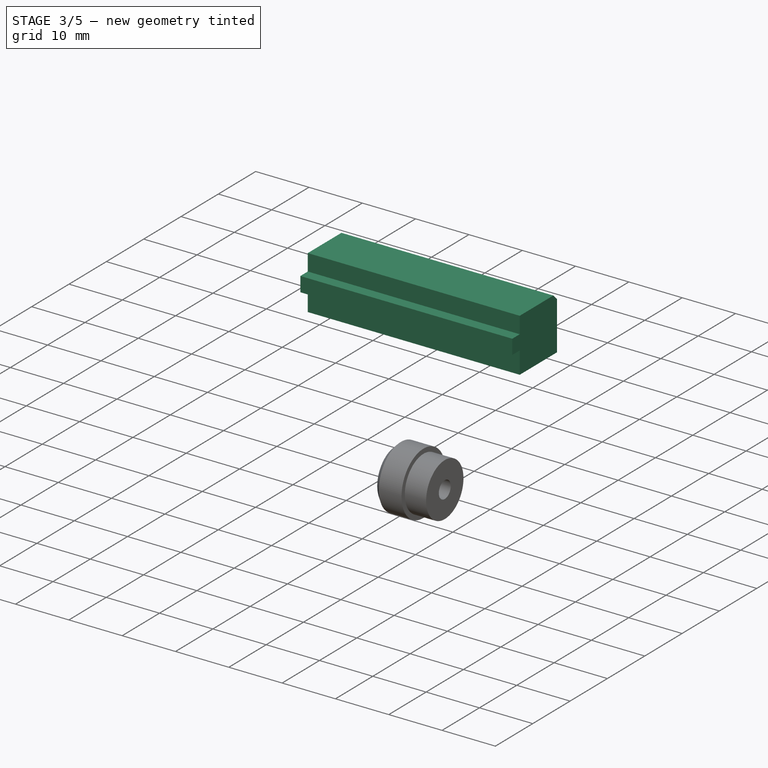
[diagram: stage 3 of 5 — iso view after this stage's code; geometry added in this stage tinted green]
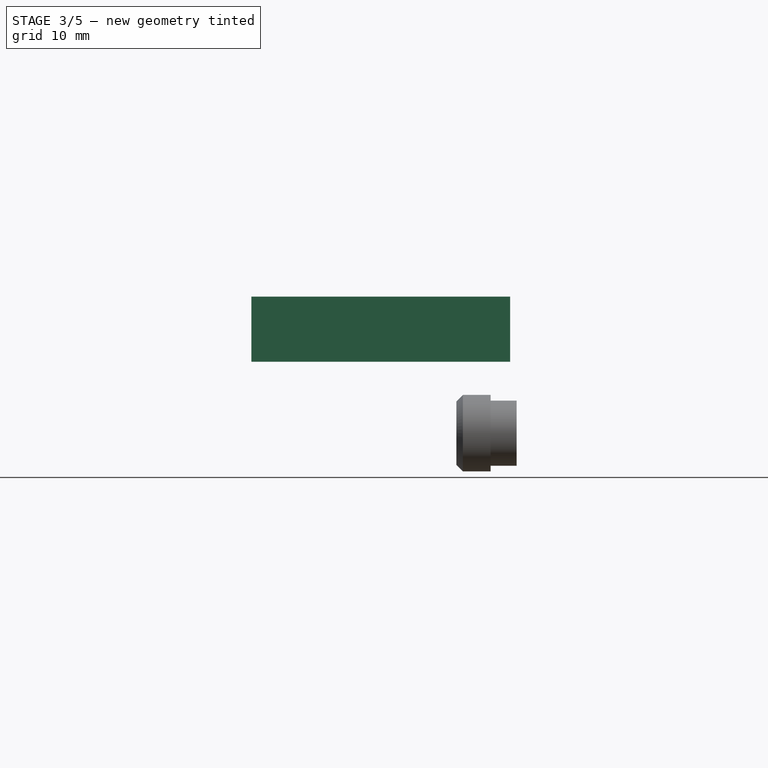
[diagram: stage 3 of 5 — front view after this stage's code; geometry added in this stage tinted green]
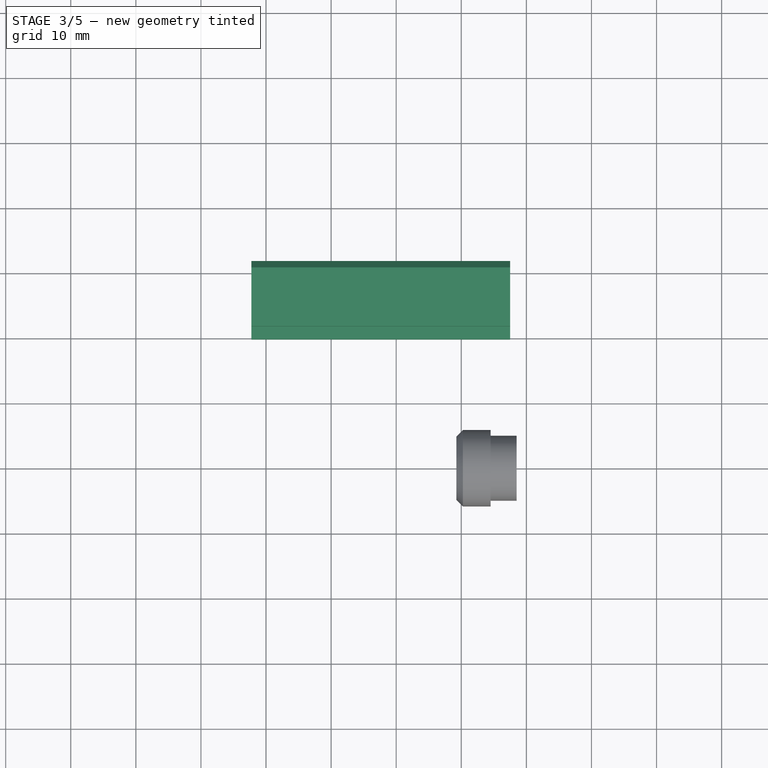
[diagram: stage 3 of 5 — top view after this stage's code; geometry added in this stage tinted green]
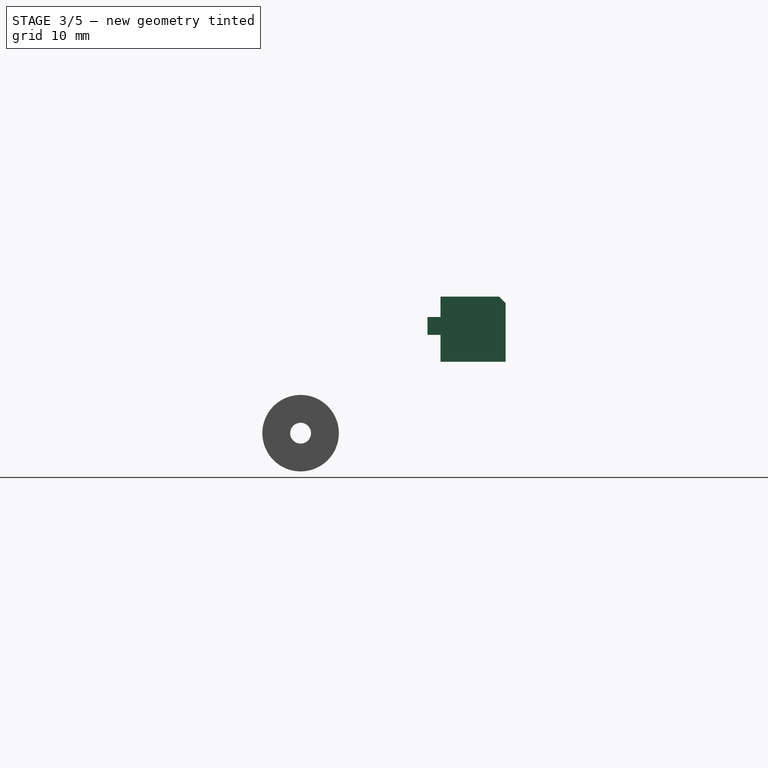
[diagram: stage 3 of 5 — right view after this stage's code; geometry added in this stage tinted green]
FEATURE [Part::SubShapeBinder] Import006  label="Import006(Pad007)"
  BindCopyOnChange = 0
  BindMode = 0
  ClaimChildren = false
  Context = -> Body005 [Import006.]
  EdgeTolerance = 1e-06
  FillStyle = 0
  FixShape = 1
  Fuse = false
  InvalidShape = false
  MakeFace = false
  MergeEdges = true
  OffsetFill = false
  OffsetIntersection = false
  OffsetJoinType = 0
  OffsetOpenResult = false
  Outline = false
  PartialLoad = false
  Relative = true
  SplitEdges = false
  Support = -> [Body003[Pad007.]]
  TightBound = false
  TreeRank = 109
  ValidateShape = false
  _Version = 8
FEATURE [Sketcher::SketchObject] Sketch018
  ArcFitTolerance = 1e-06
  AttachmentSupport = -> [Import006]
  ExternalBSplineMaxDegree = 5
  ExternalBSplineTolerance = 0.0001
  ExternalGeometry = -> [Import006]
  FixShape = 1
  FullyConstrained = true
  InternalTolerance = 1e-06
  InvalidShape = false
  MakeInternals = false
  MapMode = 5
  Placement = pos=(14.5,-3.2e-15,3.3e-15) rot=(-0.57735,0.57735,0.57735;4.18879rad)
  Support = -> [Import006]
  TreeRank = 110
  ValidateShape = false
  sketch-geometry (10):
    g0: LineSegment StartX=-21.5 StartY=-25.5 StartZ=0 EndX=43 EndY=-25.5 EndZ=0
    g1: LineSegment StartX=43 StartY=-25.5 StartZ=0 EndX=43 EndY=-22.5 EndZ=0
    g2: LineSegment StartX=-21.5 StartY=-25.5 StartZ=0 EndX=-21.5 EndY=-22.5 EndZ=0
    g3: LineSegment StartX=-21.5 StartY=-22.5 StartZ=0 EndX=-19.5 EndY=-22.5 EndZ=0
    g4: ArcOfCircle CenterX=-16.5 CenterY=-22.5 CenterZ=0 NormalX=0 NormalY=0 NormalZ=1 AngleXU=0 Radius=3 StartAngle=5e-16 EndAngle=3.14159
    g5: ArcOfCircle CenterX=18 CenterY=-22.5 CenterZ=0 NormalX=0 NormalY=0 NormalZ=1 AngleXU=0 Radius=3 StartAngle=1e-16 EndAngle=3.14159
    g6: ArcOfCircle CenterX=38 CenterY=-22.5 CenterZ=0 NormalX=0 NormalY=0 NormalZ=1 AngleXU=0 Radius=3 StartAngle=2e-16 EndAngle=3.14159
    g7: LineSegment StartX=41 StartY=-22.5 StartZ=0 EndX=43 EndY=-22.5 EndZ=0
    g8: LineSegment StartX=21 StartY=-22.5 StartZ=0 EndX=35 EndY=-22.5 EndZ=0
    g9: LineSegment StartX=-13.5 StartY=-22.5 StartZ=0 EndX=15 EndY=-22.5 EndZ=0
  constraints (29):
    c: Coincident(g0,g-4)
    c: Coincident(g0,g-5)
    c: Coincident(g1,g0)
    c: PointOnObject(g1,g-5)
    c: Coincident(g2,g0)
    c: PointOnObject(g2,g-3)
    c: Coincident(g3,g2)
    c: Coincident(g7,g1)
    c: DistanceY(g2,g2) = 3
    c: PointOnObject(g5,g3)
    c: Coincident(g7,g6)
    c: Coincident(g8,g6)
    c: PointOnObject(g8,g5)
    c: Coincident(g9,g5)
    c: Coincident(g9,g4)
    c: Coincident(g3,g4)
    c: Coincident(g4,g-8)
    c: Coincident(g5,g-7)
    c: Coincident(g6,g-6)
    c: Equal(g5,g6)
    c: Equal(g6,g4)
    c: Horizontal(g3,g4)
    c: Horizontal(g4,g5)
    c: Horizontal(g5,g6)
    c: Horizontal(g6,g6)
    c: Horizontal(g6,g1)
    c: Horizontal(g1,g2)
    c: Radius(g4) = 3
    c: Horizontal(g8,g5)
FEATURE [Sketcher::SketchObject] Sketch019
  ArcFitTolerance = 1e-06
  AttachmentSupport = -> [Pad007]
  ExternalBSplineMaxDegree = 5
  ExternalBSplineTolerance = 0.0001
  ExternalGeometry = -> [Import003]
  FixShape = 1
  FullyConstrained = true
  InternalTolerance = 1e-06
  InvalidShape = false
  MakeInternals = false
  MapMode = 5
  Placement = pos=(14.5,-3.2e-15,3.3e-15) rot=(-0.57735,0.57735,0.57735;4.18879rad)
  Support = -> [Pad007]
  TreeRank = 119
  ValidateShape = false
  sketch-geometry (2):
    g0: Circle CenterX=17.8287 CenterY=16.0667 CenterZ=0 NormalX=0 NormalY=0 NormalZ=1 AngleXU=0 Radius=3.5
    g1: Circle CenterX=17.8287 CenterY=16.0667 CenterZ=0 NormalX=0 NormalY=0 NormalZ=1 AngleXU=0 Radius=1.5
  constraints (4):
    c: Equal(g0,g-3)
    c: Coincident(g0,g-3)
    c: Coincident(g1,g0)
    c: Diameter(g1) = 3
FEATURE [PartDesign::SubShapeBinder] Import008  label="Import008(Pad007)"
  BindCopyOnChange = 0
  BindMode = 0
  ClaimChildren = false
  Context = -> Body004 [Import008.]
  EdgeTolerance = 1e-06
  FillStyle = 0
  FixShape = 1
  Fuse = false
  InvalidShape = false
  MakeFace = false
  MergeEdges = true
  OffsetFill = false
  OffsetIntersection = false
  OffsetJoinType = 0
  OffsetOpenResult = false
  Outline = false
  PartialLoad = false
  Relative = true
  SplitEdges = false
  Support = -> [Body003[Pad007.Face4]]
  TightBound = false
  TreeRank = 115
  ValidateShape = false
  _Version = 8
FEATURE [PartDesign::Pad] Pad012
  AddSubType = 0
  AlongSketchNormal = false
  AutoTaperInnerAngle = true
  BaseFeature = -> Pad010
  CheckUpToFaceLimits = true
  ClaimChildren = false
  Direction = (-1,3e-16,-3e-16)
  Fit = 0
  FitJoin = 0
  FixShape = 1
  InnerFit = 0
  InnerFitJoin = 0
  InvalidShape = false
  Length = 10
  Length2 = 100
  Linearize = true
  NewSolid = false
  Profile = -> Sketch019
  Refine = true
  Suppress = false
  TaperInnerAngle = 0
  TaperInnerAngleRev = 0
  TreeRank = 120
  Type = 3
  UpToFace = -> Pad010 [Face4]
  ValidateShape = false
  _ProfileBasedVersion = 1
FEATURE [PartDesign::Fillet] Fillet
  AddSubType = 0
  Base = -> Pad012 [Edge25]
  BaseFeature = -> Pad012
  FixShape = 1
  InvalidShape = false
  NewSolid = false
  Radius = 2
  Refine = true
  SupportTransform = false
  Suppress = false
  TreeRank = 121
  ValidateShape = false
FEATURE [PartDesign::Body] Body003  label="right_plate"
  AutoGroupSolids = false
  ClaimAllChildren = false
  ExportMode = 0
  FixShape = 1
  Group = -> [Sketch011,Import001,Pad005,Sketch012,Pad006,Sketch013,Pad007,Sketch026,Sketch027,Pad017,Sketch028,Pocket005]
  InvalidShape = false
  Origin = -> Origin003
  Tip = -> Pocket005
  TreeRank = 68
  ValidateShape = false
  _ExportChildren = -> [Import001,Pad005,Pad006,Pad007,Sketch026,Pad017,Pocket005]
  _GroupVersion = 1
FEATURE [Part::SubShapeBinder] Import015  label="Import015(Pocket005)"
  BindCopyOnChange = 0
  BindMode = 0
  ClaimChildren = false
  Context = -> Body004 [Import015.]
  EdgeTolerance = 1e-06
  FillStyle = 0
  FixShape = 1
  Fuse = false
  InvalidShape = false
  MakeFace = false
  MergeEdges = true
  OffsetFill = false
  OffsetIntersection = false
  OffsetJoinType = 0
  OffsetOpenResult = false
  Outline = false
  PartialLoad = false
  Relative = true
  SplitEdges = false
  Support = -> [Body003[Pocket005.]]
  TightBound = false
  TreeRank = 188
  ValidateShape = false
  _Version = 8
FEATURE [Sketcher::SketchObject] Sketch029
  ArcFitTolerance = 1e-06
  AttachmentSupport = -> [Fillet]
  ExternalBSplineMaxDegree = 5
  ExternalBSplineTolerance = 0.0001
  ExternalGeometry = -> [Import015,Fillet]
  FixShape = 1
  FullyConstrained = true
  InternalTolerance = 1e-06
  InvalidShape = false
  MakeInternals = false
  MapMode = 5
  Placement = pos=(-22.25,1.45e-14,-7.1e-15) rot=(-0.57735,0.57735,0.57735;4.18879rad)
  Support = -> [Fillet]
  TreeRank = 187
  ValidateShape = false
  sketch-geometry (2):
    g0: LineSegment StartX=-21.5 StartY=14.98 StartZ=0 EndX=-21.5 EndY=-7.06668e-06 EndZ=0
    g1: ArcOfCircle CenterX=5.28e-14 CenterY=-2.6809e-12 CenterZ=0 NormalX=0 NormalY=0 NormalZ=1 AngleXU=0 Radius=21.5 StartAngle=1.79118 EndAngle=3.14159
  constraints (6):
    c: Coincident(g0,g-4)
    c: Vertical(g0)
    c: Coincident(g1,g0)
    c: Coincident(g1,g-8)
    c: Equal(g-9,g1)
    c: PointOnObject(g0,g-9)
FEATURE [PartDesign::Pad] Pad018
  AddSubType = 0
  AlongSketchNormal = false
  AutoTaperInnerAngle = true
  BaseFeature = -> Fillet
  CheckUpToFaceLimits = true
  ClaimChildren = false
  Direction = (-1,7e-16,-2e-16)
  Fit = 0
  FitJoin = 0
  FixShape = 1
  InnerFit = 0
  InnerFitJoin = 0
  InvalidShape = false
  Length = 10
  Length2 = 100
  Linearize = true
  NewSolid = false
  Profile = -> Sketch029
  Refine = true
  Suppress = false
  TaperInnerAngle = 0
  TaperInnerAngleRev = 0
  TreeRank = 189
  Type = 3
  UpToFace = -> Fillet [Face1]
  ValidateShape = false
  _ProfileBasedVersion = 1
FEATURE [PartDesign::Body] Body004  label="left_plate"
  AutoGroupSolids = false
  ClaimAllChildren = false
  ExportMode = 0
  FixShape = 1
  Group = -> [Import002,Sketch014,Import003,Import008,Pad008,Sketch015,Pocket003,Sketch016,Import004,Pad009,Import005,Sketch017,Pad010,Sketch019,Pad012,Fillet,Sketch029,Import015,Pad018]
  InvalidShape = false
  Origin = -> Origin004
  Tip = -> Pad018
  TreeRank = 85
  ValidateShape = false
  _ExportChildren = -> [Import002,Import003,Import008,Pad008,Pocket003,Import004,Pad009,Import005,Pad010,Pad012,Fillet,Import015,Pad018]
  _GroupVersion = 1
FEATURE [Part::SubShapeBinder] Import016  label="Import016(Pad018)"
  BindCopyOnChange = 0
  BindMode = 0
  ClaimChildren = false
  Context = -> Body008 [Import016.]
  EdgeTolerance = 1e-06
  FillStyle = 0
  FixShape = 1
  Fuse = false
  InvalidShape = false
  MakeFace = false
  MergeEdges = true
  OffsetFill = false
  OffsetIntersection = false
  OffsetJoinType = 0
  OffsetOpenResult = false
  Outline = false
  PartialLoad = false
  Relative = true
  SplitEdges = false
  Support = -> [Body004[Pad018.]]
  TightBound = false
  TreeRank = 201
  ValidateShape = false
  _Version = 8
FEATURE [Part::SubShapeBinder] Import017  label="Import017(Pocket005)"
  BindCopyOnChange = 0
  BindMode = 0
  ClaimChildren = false
  Context = -> Body008 [Import017.]
  EdgeTolerance = 1e-06
  FillStyle = 0
  FixShape = 1
  Fuse = false
  InvalidShape = false
  MakeFace = false
  MergeEdges = true
  OffsetFill = false
  OffsetIntersection = false
  OffsetJoinType = 0
  OffsetOpenResult = false
  Outline = false
  PartialLoad = false
  Relative = true
  SplitEdges = false
  Support = -> [Body003[Pocket005.]]
  TightBound = false
  TreeRank = 202
  ValidateShape = false
  _Version = 8
FEATURE [Part::SubShapeBinder] Import018  label="Import018(Sketch026)"
  BindCopyOnChange = 0
  BindMode = 0
  ClaimChildren = false
  Context = -> Body008 [Import018.]
  EdgeTolerance = 1e-06
  FillStyle = 0
  FixShape = 1
  Fuse = false
  InvalidShape = false
  MakeFace = false
  MergeEdges = true
  OffsetFill = false
  OffsetIntersection = false
  OffsetJoinType = 0
  OffsetOpenResult = false
  Outline = false
  PartialLoad = false
  Relative = true
  SplitEdges = false
  Support = -> [Body003[Sketch026.]]
  TightBound = false
  TreeRank = 203
  ValidateShape = false
  _Version = 8
FEATURE [Sketcher::SketchObject] Sketch030
  ArcFitTolerance = 1e-06
  AttachmentSupport = -> [Pad018]
  ExternalBSplineMaxDegree = 5
  ExternalBSplineTolerance = 0.0001
  ExternalGeometry = -> [Import016,Import017,Import018]
  FixShape = 1
  FullyConstrained = true
  InternalTolerance = 1e-06
  InvalidShape = false
  MakeInternals = false
  MapMode = 5
  Placement = pos=(9.7e-15,21.5,-8e-16) rot=(0,0.707107,0.707107;3.14159rad)
  Support = -> [Pad018]
  TreeRank = 200
  ValidateShape = false
  sketch-geometry (4):
    g0: LineSegment StartX=-17.5 StartY=20.98 StartZ=0 EndX=22.25 EndY=20.98 EndZ=0
    g1: LineSegment StartX=22.25 StartY=20.98 StartZ=0 EndX=22.25 EndY=10.98 EndZ=0
    g2: LineSegment StartX=22.25 StartY=10.98 StartZ=0 EndX=-17.5 EndY=10.98 EndZ=0
    g3: LineSegment StartX=-17.5 StartY=10.98 StartZ=0 EndX=-17.5 EndY=20.98 EndZ=0
  constraints (11):
    c: Coincident(g0,g1)
    c: Coincident(g1,g2)
    c: Coincident(g2,g3)
    c: Coincident(g3,g0)
    c: Horizontal(g0)
    c: Horizontal(g2)
    c: Vertical(g1)
    c: Vertical(g3)
    c: Coincident(g0,g-4)
    c: PointOnObject(g1,g-6)
    c: DistanceY(g2,g-7) = 4  '8'
FEATURE [PartDesign::Pad] Pad019
  AddSubType = 0
  AlongSketchNormal = false
  AutoTaperInnerAngle = true
  CheckUpToFaceLimits = true
  ClaimChildren = false
  Direction = (4e-16,1,-2e-16)
  Fit = 0
  FitJoin = 0
  FixShape = 1
  InnerFit = 0
  InnerFitJoin = 0
  InvalidShape = false
  Length = 10
  Length2 = 100
  Linearize = true
  NewSolid = true
  Profile = -> Sketch030
  Refine = true
  Suppress = false
  TaperInnerAngle = 0
  TaperInnerAngleRev = 0
  TreeRank = 204
  Type = 0
  ValidateShape = false
  _ProfileBasedVersion = 1
FEATURE [Sketcher::SketchObject] Sketch031
  ArcFitTolerance = 1e-06
  AttachmentSupport = -> [Pad019]
  ExternalBSplineMaxDegree = 5
  ExternalBSplineTolerance = 0.0001
  ExternalGeometry = -> [Import017]
  FixShape = 1
  FullyConstrained = true
  InternalTolerance = 1e-06
  InvalidShape = false
  MakeInternals = false
  MapMode = 5
  Placement = pos=(17.5,-7.9e-15,0) rot=(0.57735,0.57735,0.57735;2.0944rad)
  Support = -> [Pad019]
  TreeRank = 205
  ValidateShape = false
  sketch-geometry (4):
    g0: LineSegment StartX=19.5 StartY=17.855 StartZ=0 EndX=21.5 EndY=17.855 EndZ=0
    g1: LineSegment StartX=21.5 StartY=17.855 StartZ=0 EndX=21.5 EndY=15.105 EndZ=0
    g2: LineSegment StartX=21.5 StartY=15.105 StartZ=0 EndX=19.5 EndY=15.105 EndZ=0
    g3: LineSegment StartX=19.5 StartY=15.105 StartZ=0 EndX=19.5 EndY=17.855 EndZ=0
  constraints (12):
    c: Coincident(g0,g1)
    c: Coincident(g1,g2)
    c: Coincident(g2,g3)
    c: Coincident(g3,g0)
    c: Horizontal(g0)
    c: Horizontal(g2)
    c: Vertical(g1)
    c: Vertical(g3)
    c: Vertical(g1,g-4)
    c: Vertical(g0,g-3)
    c: DistanceY(g0,g-3) = 0.125
    c: DistanceY(g-4,g1) = 0.125
FEATURE [PartDesign::Pad] Pad020
  AddSubType = 0
  AlongSketchNormal = false
  AutoTaperInnerAngle = true
  BaseFeature = -> Pad019
  CheckUpToFaceLimits = true
  ClaimChildren = false
  Direction = (1,-4e-16,0)
  Fit = 0
  FitJoin = 0
  FixShape = 1
  InnerFit = 0
  InnerFitJoin = 0
  InvalidShape = false
  Length = 10
  Length2 = 100
  Linearize = true
  NewSolid = false
  Profile = -> Sketch031
  Refine = true
  Suppress = false
  TaperInnerAngle = 0
  TaperInnerAngleRev = 0
  TreeRank = 206
  Type = 3
  UpToFace = -> Pad019 [Face2]
  ValidateShape = false
  _ProfileBasedVersion = 1
FEATURE [Sketcher::SketchObject] Sketch032
  ArcFitTolerance = 1e-06
  AttachmentSupport = -> [Pad020]
  ExternalBSplineMaxDegree = 5
  ExternalBSplineTolerance = 0.0001
  ExternalGeometry = -> [Pad020,Import018]
  FixShape = 1
  FullyConstrained = true
  InternalTolerance = 1e-06
  InvalidShape = false
  MakeInternals = false
  MapMode = 5
  Placement = pos=(1.41e-14,31.5,-1.12e-14) rot=(0,0.707107,0.707107;3.14159rad)
  Support = -> [Pad020]
  TreeRank = 207
  ValidateShape = false
  sketch-geometry (2):
    g0: Circle CenterX=2.375 CenterY=14.98 CenterZ=0 NormalX=0 NormalY=0 NormalZ=1 AngleXU=0 Radius=2
    g1: LineSegment [constr] StartX=-17.5 StartY=14.98 StartZ=0 EndX=22.25 EndY=14.98 EndZ=0
  constraints (5):
    c: Horizontal(g1)
    c: Symmetric(g1,g1,g0)
    c: Diameter(g0) = 4
    c: Coincident(g1,g-5)
    c: PointOnObject(g1,g-3)
FEATURE [PartDesign::Pocket] Pocket006
  AddSubType = 1
  AutoTaperInnerAngle = true
  BaseFeature = -> Pad020
  CheckUpToFaceLimits = true
  ClaimChildren = false
  Fit = 0
  FitJoin = 0
  FixShape = 1
  InnerFit = 0
  InnerFitJoin = 0
  InvalidShape = false
  Length = 0.7
  Length2 = 100
  Linearize = true
  NewSolid = false
  Profile = -> Sketch032
  Refine = true
  Suppress = false
  TaperInnerAngle = 0
  TaperInnerAngleRev = 0
  TreeRank = 208
  Type = 0
  ValidateShape = false
  _ProfileBasedVersion = 1
  _Version = 1
FEATURE [PartDesign::Chamfer] Chamfer004
  AddSubType = 0
  Angle = 45
  Base = -> Pocket006 [Edge21]
  BaseFeature = -> Pocket006
  ChamferType = 0
  FixShape = 1
  FlipDirection = false
  InvalidShape = false
  NewSolid = false
  Refine = true
  Size = 0.25
  Size2 = 1
  SupportTransform = false
  Suppress = false
  TreeRank = 209
  ValidateShape = false
FEATURE [PartDesign::Chamfer] Chamfer005
  AddSubType = 0
  Angle = 45
  Base = -> Chamfer004 [Edge2]
  BaseFeature = -> Chamfer004
  ChamferType = 0
  FixShape = 1
  FlipDirection = false
  InvalidShape = false
  NewSolid = false
  Refine = true
  Size = 1
  Size2 = 1
  SupportTransform = false
  Suppress = false
  TreeRank = 210
  ValidateShape = false
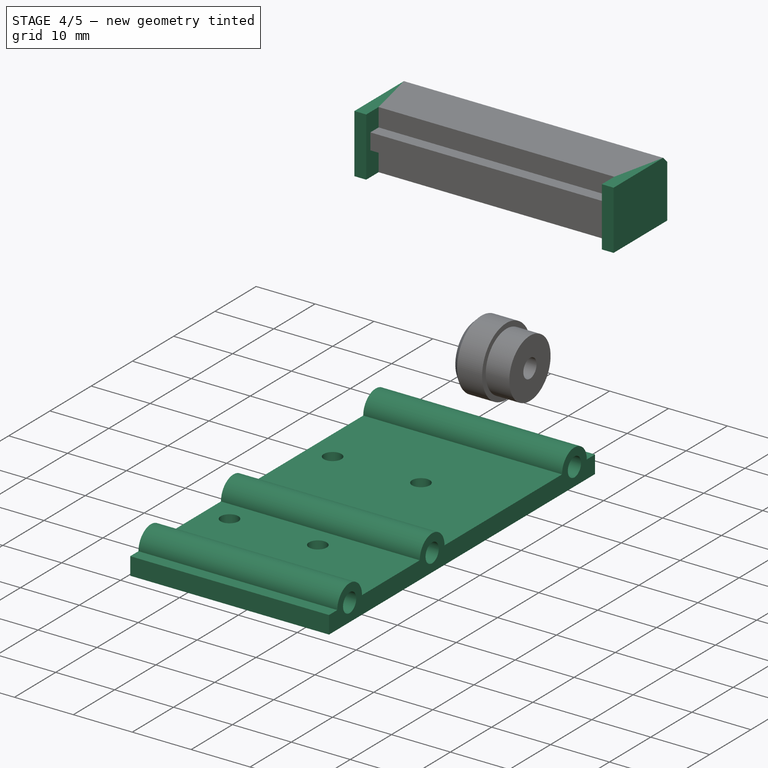
[diagram: stage 4 of 5 — iso view after this stage's code; geometry added in this stage tinted green]
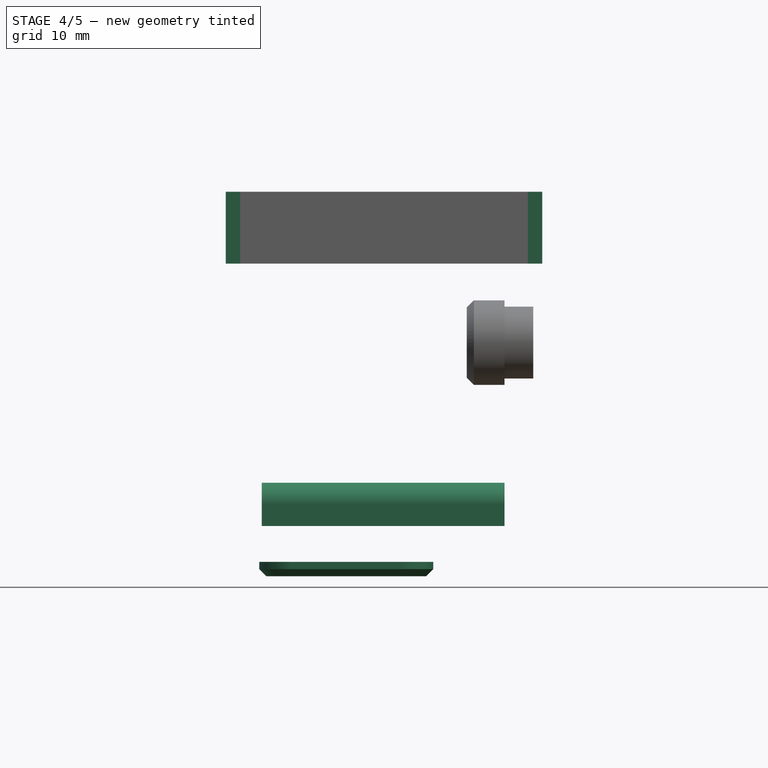
[diagram: stage 4 of 5 — front view after this stage's code; geometry added in this stage tinted green]
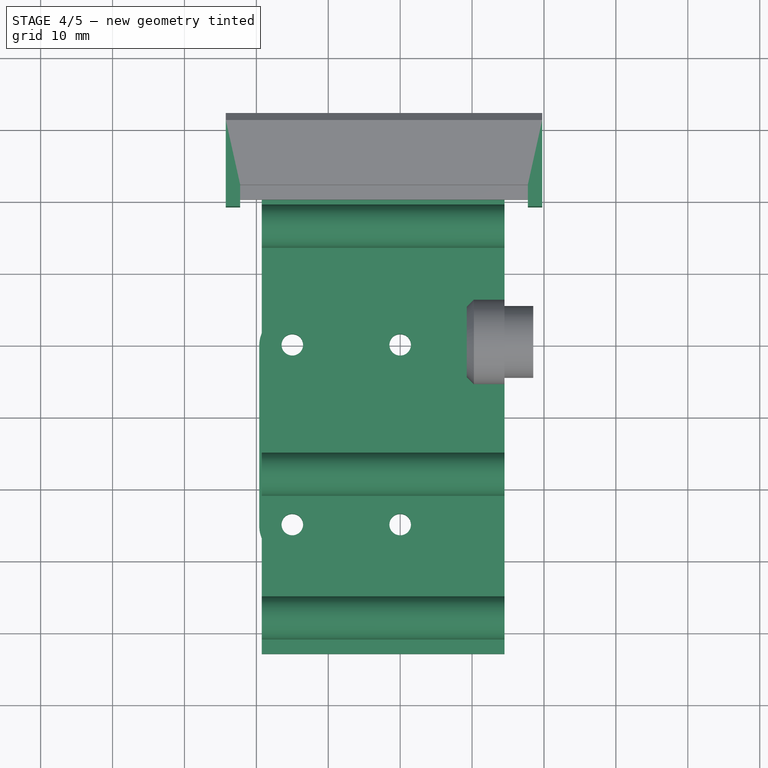
[diagram: stage 4 of 5 — top view after this stage's code; geometry added in this stage tinted green]
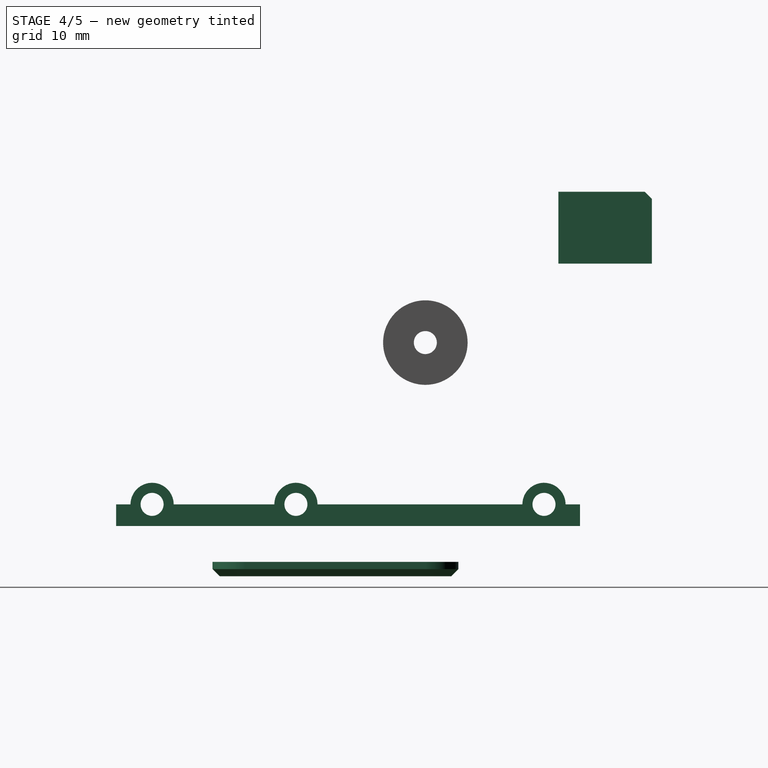
[diagram: stage 4 of 5 — right view after this stage's code; geometry added in this stage tinted green]
FEATURE [PartDesign::SubShapeBinder] Import012  label="Import012(Fillet)"
  BindCopyOnChange = 0
  BindMode = 0
  ClaimChildren = false
  Context = -> Body005 [Import012.]
  EdgeTolerance = 1e-06
  FillStyle = 0
  FixShape = 1
  Fuse = false
  InvalidShape = false
  MakeFace = false
  MergeEdges = true
  OffsetFill = false
  OffsetIntersection = false
  OffsetJoinType = 0
  OffsetOpenResult = false
  Outline = false
  PartialLoad = false
  Relative = true
  SplitEdges = false
  Support = -> [Body004[Fillet.Face1]]
  TightBound = false
  TreeRank = 141
  ValidateShape = false
  _Version = 8
FEATURE [PartDesign::Pad] Pad011
  AddSubType = 0
  AlongSketchNormal = false
  AutoTaperInnerAngle = true
  CheckUpToFaceLimits = true
  ClaimChildren = false
  Direction = (-1,3e-16,-3e-16)
  Fit = 0
  FitJoin = 0
  FixShape = 1
  InnerFit = 0
  InnerFitJoin = 0
  InvalidShape = false
  Length = 10
  Length2 = 100
  Linearize = true
  NewSolid = true
  Profile = -> Sketch018
  Refine = true
  Suppress = false
  TaperInnerAngle = 0
  TaperInnerAngleRev = 0
  TreeRank = 117
  Type = 3
  UpToFace = -> Import012
  ValidateShape = false
  _ProfileBasedVersion = 1
FEATURE [Sketcher::SketchObject] Sketch020
  ArcFitTolerance = 1e-06
  AttachmentSupport = -> [Pad011]
  ExternalBSplineMaxDegree = 5
  ExternalBSplineTolerance = 0.0001
  FixShape = 1
  FullyConstrained = true
  InternalTolerance = 1e-06
  InvalidShape = false
  MakeInternals = false
  MapMode = 5
  Placement = pos=(8.5e-15,2.8e-15,-25.5) rot=(1,0,0;3.14159rad)
  Support = -> [Pad011]
  TreeRank = 122
  ValidateShape = false
  sketch-geometry (4):
    g0: Circle CenterX=0 CenterY=0 CenterZ=0 NormalX=0 NormalY=0 NormalZ=1 AngleXU=0 Radius=1.5
    g1: Circle CenterX=-15 CenterY=0 CenterZ=0 NormalX=0 NormalY=0 NormalZ=1 AngleXU=0 Radius=1.5
    g2: Circle CenterX=-15 CenterY=25 CenterZ=0 NormalX=0 NormalY=0 NormalZ=1 AngleXU=0 Radius=1.5
    g3: Circle CenterX=0 CenterY=25 CenterZ=0 NormalX=0 NormalY=0 NormalZ=1 AngleXU=0 Radius=1.5
  constraints (11):
    c: Coincident(g0,g-1)
    c: PointOnObject(g1,g-1)
    c: PointOnObject(g3,g-2)
    c: Equal(g0,g1)
    c: Equal(g1,g3)
    c: Equal(g3,g2)
    c: Diameter(g3) = 3
    c: Horizontal(g2,g3)
    c: Vertical(g2,g1)
    c: DistanceY(g1,g2) = 25
    c: DistanceX(g1,g0) = 15
FEATURE [PartDesign::Pocket] Pocket004
  AddSubType = 1
  AutoTaperInnerAngle = true
  BaseFeature = -> Pad011
  CheckUpToFaceLimits = true
  ClaimChildren = false
  Fit = 0
  FitJoin = 0
  FixShape = 1
  InnerFit = 0
  InnerFitJoin = 0
  InvalidShape = false
  Length = 5
  Length2 = 100
  Linearize = true
  NewSolid = false
  Profile = -> Sketch020
  Refine = true
  Suppress = false
  TaperInnerAngle = 0
  TaperInnerAngleRev = 0
  TreeRank = 123
  Type = 1
  ValidateShape = false
  _ProfileBasedVersion = 1
  _Version = 1
FEATURE [PartDesign::Body] Body005  label="bottom_plate"
  AutoGroupSolids = false
  ClaimAllChildren = false
  ExportMode = 0
  FixShape = 1
  Group = -> [Import006,Sketch018,Pad011,Sketch020,Pocket004,Import012,Sketch023,Pad015,Chamfer002,Import013]
  InvalidShape = false
  Origin = -> Origin005
  Tip = -> Chamfer002
  TreeRank = 108
  ValidateShape = false
  _ExportChildren = -> [Import006,Pad011,Pocket004,Import012,Pad015,Chamfer002,Import013]
  _GroupVersion = 1
FEATURE [Part::SubShapeBinder] Import014  label="Import014(Chamfer002)"
  BindCopyOnChange = 0
  BindMode = 0
  ClaimChildren = false
  Context = -> Body007 [Import014.]
  EdgeTolerance = 1e-06
  FillStyle = 0
  FixShape = 1
  Fuse = false
  InvalidShape = false
  MakeFace = false
  MergeEdges = true
  OffsetFill = false
  OffsetIntersection = false
  OffsetJoinType = 0
  OffsetOpenResult = false
  Outline = false
  PartialLoad = false
  Relative = true
  SplitEdges = false
  Support = -> [Body005[Chamfer002.]]
  TightBound = false
  TreeRank = 166
  ValidateShape = false
  _Version = 8
FEATURE [Sketcher::SketchObject] Sketch024
  ArcFitTolerance = 1e-06
  AttachmentOffset = pos=(0,0,5) rot=(0,0,1;0rad)
  AttachmentSupport = -> [Import014]
  ExternalBSplineMaxDegree = 5
  ExternalBSplineTolerance = 0.0001
  ExternalGeometry = -> [Import014]
  FixShape = 1
  FullyConstrained = true
  InternalTolerance = 1e-06
  InvalidShape = false
  MakeInternals = false
  MapMode = 5
  Placement = pos=(1.02e-14,3.4e-15,-30.5) rot=(1,0,0;3.14159rad)
  Support = -> [Import014]
  TreeRank = 167
  ValidateShape = false
  sketch-geometry (15):
    g0: ArcOfCircle CenterX=-15 CenterY=25 CenterZ=0 NormalX=0 NormalY=0 NormalZ=1 AngleXU=0 Radius=4.6 StartAngle=1.5708 EndAngle=3.14159
    g1: LineSegment StartX=-15 StartY=29.6 StartZ=0 EndX=0 EndY=29.6 EndZ=0
    g2: ArcOfCircle CenterX=-2e-16 CenterY=25 CenterZ=0 NormalX=0 NormalY=0 NormalZ=1 AngleXU=0 Radius=4.6 StartAngle=4e-16 EndAngle=1.5708
    g3: LineSegment StartX=4.6 StartY=25 StartZ=0 EndX=4.6 EndY=0 EndZ=0
    g4: ArcOfCircle CenterX=0 CenterY=0 CenterZ=0 NormalX=0 NormalY=0 NormalZ=1 AngleXU=0 Radius=4.6 StartAngle=4.71239 EndAngle=6.28319
    g5: LineSegment StartX=6e-16 StartY=-4.6 StartZ=0 EndX=-15 EndY=-4.6 EndZ=0
    g6: ArcOfCircle CenterX=-15 CenterY=1e-16 CenterZ=0 NormalX=0 NormalY=0 NormalZ=1 AngleXU=0 Radius=4.6 StartAngle=3.14159 EndAngle=4.71239
    g7: LineSegment StartX=-19.6 StartY=-5e-16 StartZ=0 EndX=-19.6 EndY=25 EndZ=0
    g8: GeomPoint [constr] X=-19.6 Y=29.6 Z=0
    g9: GeomPoint [constr] X=4.6 Y=-4.6 Z=0
    g10: Circle CenterX=-15 CenterY=25 CenterZ=0 NormalX=0 NormalY=0 NormalZ=1 AngleXU=0 Radius=1.6
    g11: Circle CenterX=-2e-16 CenterY=25 CenterZ=0 NormalX=0 NormalY=0 NormalZ=1 AngleXU=0 Radius=1.6
    g12: Circle CenterX=-15 CenterY=1e-16 CenterZ=0 NormalX=0 NormalY=0 NormalZ=1 AngleXU=0 Radius=1.6
    g13: Circle CenterX=0 CenterY=0 CenterZ=0 NormalX=0 NormalY=0 NormalZ=1 AngleXU=0 Radius=1.6
    g14: GeomPoint [constr] X=-16.6 Y=0 Z=0
  constraints (32):
    c: Tangent(g0,g1) = 1.5708
    c: Tangent(g1,g2) = 1.5708
    c: Tangent(g2,g3) = 1.5708
    c: Tangent(g3,g4) = 1.5708
    c: Tangent(g4,g5) = 1.5708
    c: Tangent(g5,g6) = 1.5708
    c: Tangent(g6,g7) = 1.5708
    c: Tangent(g7,g0) = 1.5708
    c: Horizontal(g1)
    c: Horizontal(g5)
    c: Vertical(g3)
    c: Vertical(g7)
    c: Equal(g0,g2)
    c: Equal(g2,g4)
    c: Equal(g4,g6)
    c: PointOnObject(g8,g1)
    c: PointOnObject(g8,g7)
    c: PointOnObject(g9,g3)
    c: PointOnObject(g9,g5)
    c: Coincident(g4,g-4)
    c: Coincident(g0,g-6)
    c: Coincident(g10,g0)
    c: Coincident(g11,g2)
    c: Coincident(g12,g6)
    c: Coincident(g13,g4)
    c: Equal(g13,g12)
    c: Equal(g12,g10)
    c: Equal(g10,g11)
    c: PointOnObject(g14,g12)
    c: PointOnObject(g14,g-1)
    c: DistanceX(g6,g14) = 3
    c: Diameter(g12) = 3.2
FEATURE [PartDesign::Pad] Pad016
  AddSubType = 0
  AlongSketchNormal = false
  AutoTaperInnerAngle = true
  CheckUpToFaceLimits = true
  ClaimChildren = false
  Direction = (3e-16,1e-16,-1)
  Fit = 0
  FitJoin = 0
  FixShape = 1
  InnerFit = 0
  InnerFitJoin = 0
  InvalidShape = false
  Length = 2
  Length2 = 100
  Linearize = true
  NewSolid = false
  Profile = -> Sketch024
  Refine = true
  Suppress = false
  TaperInnerAngle = 0
  TaperInnerAngleRev = 0
  TreeRank = 168
  Type = 0
  ValidateShape = false
  _ProfileBasedVersion = 1
FEATURE [PartDesign::Chamfer] Chamfer003
  AddSubType = 0
  Angle = 45
  Base = -> Pad016 [Edge24]
  BaseFeature = -> Pad016
  ChamferType = 0
  FixShape = 1
  FlipDirection = false
  InvalidShape = false
  NewSolid = false
  Refine = true
  Size = 1
  Size2 = 1
  SupportTransform = false
  Suppress = false
  TreeRank = 169
  ValidateShape = false
FEATURE [PartDesign::Body] Body007  label="lower_clamp"
  AutoGroupSolids = false
  ClaimAllChildren = false
  ExportMode = 0
  FixShape = 1
  Group = -> [Import014,Sketch024,Pad016,Chamfer003]
  InvalidShape = false
  Origin = -> Origin007
  Tip = -> Chamfer003
  TreeRank = 165
  ValidateShape = false
  _ExportChildren = -> [Import014,Pad016,Chamfer003]
  _GroupVersion = 1
FEATURE [Sketcher::SketchObject] Sketch026
  ArcFitTolerance = 1e-06
  AttachmentSupport = -> [Pad007]
  ExternalBSplineMaxDegree = 5
  ExternalBSplineTolerance = 0.0001
  ExternalGeometry = -> [Pad007]
  FixShape = 1
  FullyConstrained = true
  InternalTolerance = 1e-06
  InvalidShape = false
  MakeInternals = false
  MapMode = 5
  Placement = pos=(17.5,-3.9e-15,4e-15) rot=(0.57735,0.57735,0.57735;2.0944rad)
  Support = -> [Pad007]
  TreeRank = 182
  ValidateShape = false
  sketch-geometry (4):
    g0: LineSegment StartX=4.69996 StartY=20.98 StartZ=0 EndX=21.5 EndY=20.98 EndZ=0
    g1: LineSegment StartX=21.5 StartY=20.98 StartZ=0 EndX=21.5 EndY=0 EndZ=0
    g2: ArcOfCircle CenterX=-3e-16 CenterY=1.6e-15 CenterZ=0 NormalX=0 NormalY=0 NormalZ=1 AngleXU=0 Radius=21.5 StartAngle=0 EndAngle=1.35041
    g3: LineSegment StartX=21.5 StartY=14.98 StartZ=0 EndX=41.5 EndY=14.98 EndZ=0
  constraints (13):
    c: PointOnObject(g0,g-3)
    c: Horizontal(g0)
    c: Coincident(g1,g0)
    c: Coincident(g1,g-3)
    c: Vertical(g1)
    c: Coincident(g2,g0)
    c: Coincident(g2,g1)
    c: Equal(g2,g-3)
    c: PointOnObject(g3,g1)
    c: Horizontal(g3)
    c: DistanceY(g-4,g3) = 40.48
    c: DistanceY(g3,g0) = 6
    c: DistanceX(g3,g3) = 20
FEATURE [Sketcher::SketchObject] Sketch027
  ArcFitTolerance = 1e-06
  AttachmentSupport = -> [Pad007]
  ExternalBSplineMaxDegree = 5
  ExternalBSplineTolerance = 0.0001
  ExternalGeometry = -> [Sketch026]
  FixShape = 1
  FullyConstrained = true
  InternalTolerance = 1e-06
  InvalidShape = false
  MakeInternals = false
  MapMode = 5
  Placement = pos=(17.5,-3.9e-15,4e-15) rot=(0.57735,0.57735,0.57735;2.0944rad)
  Support = -> [Pad007]
  TreeRank = 183
  ValidateShape = false
FEATURE [PartDesign::Pad] Pad017
  AddSubType = 0
  AlongSketchNormal = false
  AutoTaperInnerAngle = true
  BaseFeature = -> Pad007
  CheckUpToFaceLimits = true
  ClaimChildren = false
  Direction = (1,-2e-16,2e-16)
  Fit = 0
  FitJoin = 0
  FixShape = 1
  InnerFit = 0
  InnerFitJoin = 0
  InvalidShape = false
  Length = 10
  Length2 = 100
  Linearize = true
  NewSolid = false
  Profile = -> Sketch027
  Refine = true
  Suppress = false
  TaperInnerAngle = 0
  TaperInnerAngleRev = 0
  TreeRank = 184
  Type = 3
  UpToFace = -> Pad007 [Face4]
  ValidateShape = false
  _ProfileBasedVersion = 1
FEATURE [Sketcher::SketchObject] Sketch028
  ArcFitTolerance = 1e-06
  AttachmentSupport = -> [Pad017]
  ExternalBSplineMaxDegree = 5
  ExternalBSplineTolerance = 0.0001
  ExternalGeometry = -> [Pad017]
  FixShape = 1
  FullyConstrained = true
  InternalTolerance = 1e-06
  InvalidShape = false
  MakeInternals = false
  MapMode = 5
  Placement = pos=(17.5,-1.4e-15,-1.8e-15) rot=(0.57735,0.57735,0.57735;2.0944rad)
  Support = -> [Pad017]
  TreeRank = 185
  ValidateShape = false
  sketch-geometry (4):
    g0: LineSegment StartX=19.5 StartY=17.98 StartZ=0 EndX=21.5 EndY=17.98 EndZ=0
    g1: LineSegment StartX=21.5 StartY=17.98 StartZ=0 EndX=21.5 EndY=14.98 EndZ=0
    g2: LineSegment StartX=21.5 StartY=14.98 StartZ=0 EndX=19.5 EndY=14.98 EndZ=0
    g3: LineSegment StartX=19.5 StartY=14.98 StartZ=0 EndX=19.5 EndY=17.98 EndZ=0
  constraints (12):
    c: Coincident(g0,g1)
    c: Coincident(g1,g2)
    c: Coincident(g2,g3)
    c: Coincident(g3,g0)
    c: Horizontal(g0)
    c: Horizontal(g2)
    c: Vertical(g1)
    c: Vertical(g3)
    c: PointOnObject(g1,g-3)
    c: DistanceY(g0,g-3) = 3
    c: DistanceY(g1,g1) = 3
    c: DistanceX(g2,g2) = 2
FEATURE [PartDesign::Pocket] Pocket005
  AddSubType = 1
  AutoTaperInnerAngle = true
  BaseFeature = -> Pad017
  CheckUpToFaceLimits = true
  ClaimChildren = false
  Fit = 0
  FitJoin = 0
  FixShape = 1
  InnerFit = 0
  InnerFitJoin = 0
  InvalidShape = false
  Length = 0
  Length2 = 100
  Linearize = true
  NewSolid = false
  Profile = -> Sketch028
  Refine = true
  Suppress = false
  TaperInnerAngle = 0
  TaperInnerAngleRev = 0
  TreeRank = 186
  Type = 1
  ValidateShape = false
  _ProfileBasedVersion = 1
  _Version = 1
FEATURE [Sketcher::SketchObject] Sketch033
  ArcFitTolerance = 1e-06
  AttachmentSupport = -> [Chamfer005]
  ExternalBSplineMaxDegree = 5
  ExternalBSplineTolerance = 0.0001
  ExternalGeometry = -> [Chamfer005]
  FixShape = 1
  FullyConstrained = true
  InternalTolerance = 1e-06
  InvalidShape = false
  MakeInternals = false
  MapMode = 5
  Placement = pos=(-22.25,9.4e-15,-4e-16) rot=(-0.57735,0.57735,0.57735;4.18879rad)
  Support = -> [Chamfer005]
  TreeRank = 211
  ValidateShape = false
  sketch-geometry (3):
    g0: LineSegment StartX=-21.5 StartY=20.98 StartZ=0 EndX=-18.5 EndY=20.98 EndZ=0
    g1: LineSegment StartX=-18.5 StartY=20.98 StartZ=0 EndX=-18.5 EndY=10.98 EndZ=0
    g2: LineSegment StartX=-18.5 StartY=10.98 StartZ=0 EndX=-21.5 EndY=10.98 EndZ=0
  constraints (8):
    c: Coincident(g0,g-3)
    c: Horizontal(g0)
    c: Coincident(g1,g0)
    c: Vertical(g1)
    c: Coincident(g2,g1)
    c: Coincident(g2,g-6)
    c: Horizontal(g2)
    c: DistanceX(g2,g2) = 3
FEATURE [PartDesign::Pad] Pad021
  AddSubType = 0
  AlongSketchNormal = false
  AutoTaperInnerAngle = true
  BaseFeature = -> Chamfer005
  CheckUpToFaceLimits = true
  ClaimChildren = false
  Direction = (-1,4e-16,0)
  Fit = 0
  FitJoin = 0
  FixShape = 1
  InnerFit = 0
  InnerFitJoin = 0
  InvalidShape = false
  Length = 2
  Length2 = 100
  Linearize = true
  NewSolid = false
  Profile = -> Sketch033
  Refine = true
  Suppress = false
  TaperInnerAngle = 0
  TaperInnerAngleRev = 0
  TreeRank = 212
  Type = 0
  ValidateShape = false
  _ProfileBasedVersion = 1
FEATURE [PartDesign::Pad] Pad022
  AddSubType = 0
  AlongSketchNormal = false
  AutoTaperInnerAngle = true
  BaseFeature = -> Pad021
  CheckUpToFaceLimits = true
  ClaimChildren = false
  Direction = (1,-4e-16,0)
  Fit = 0
  FitJoin = 0
  FixShape = 1
  InnerFit = 0
  InnerFitJoin = 0
  InvalidShape = false
  Length = 0.25
  Length2 = 100
  Linearize = true
  NewSolid = false
  Profile = -> Pad021 [Face1]
  Refine = true
  Suppress = false
  TaperInnerAngle = 0
  TaperInnerAngleRev = 0
  TreeRank = 213
  Type = 0
  ValidateShape = false
  _ProfileBasedVersion = 1
FEATURE [Sketcher::SketchObject] Sketch034
  ArcFitTolerance = 1e-06
  AttachmentSupport = -> [Pad022]
  ExternalBSplineMaxDegree = 5
  ExternalBSplineTolerance = 0.0001
  ExternalGeometry = -> [Pad022]
  FixShape = 1
  FullyConstrained = true
  InternalTolerance = 1e-06
  InvalidShape = false
  MakeInternals = false
  MapMode = 5
  Placement = pos=(17.75,-7.6e-15,1e-16) rot=(0.57735,0.57735,0.57735;2.0944rad)
  Support = -> [Pad022]
  TreeRank = 214
  ValidateShape = false
FEATURE [PartDesign::Pad] Pad023
  AddSubType = 0
  AlongSketchNormal = false
  AutoTaperInnerAngle = true
  BaseFeature = -> Pad022
  CheckUpToFaceLimits = true
  ClaimChildren = false
  Direction = (1,-4e-16,0)
  Fit = 0
  FitJoin = 0
  FixShape = 1
  InnerFit = 0
  InnerFitJoin = 0
  InvalidShape = false
  Length = 2
  Length2 = 100
  Linearize = true
  NewSolid = false
  Profile = -> Sketch034
  Refine = true
  Suppress = false
  TaperInnerAngle = 0
  TaperInnerAngleRev = 0
  TreeRank = 215
  Type = 0
  ValidateShape = false
  _ProfileBasedVersion = 1
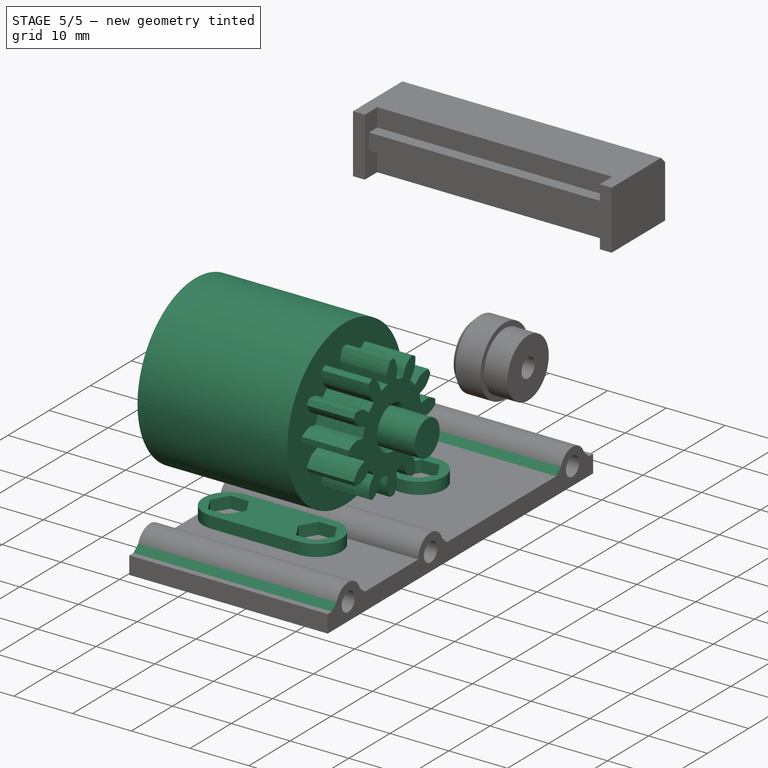
[diagram: stage 5 of 5 — iso view after this stage's code; geometry added in this stage tinted green]
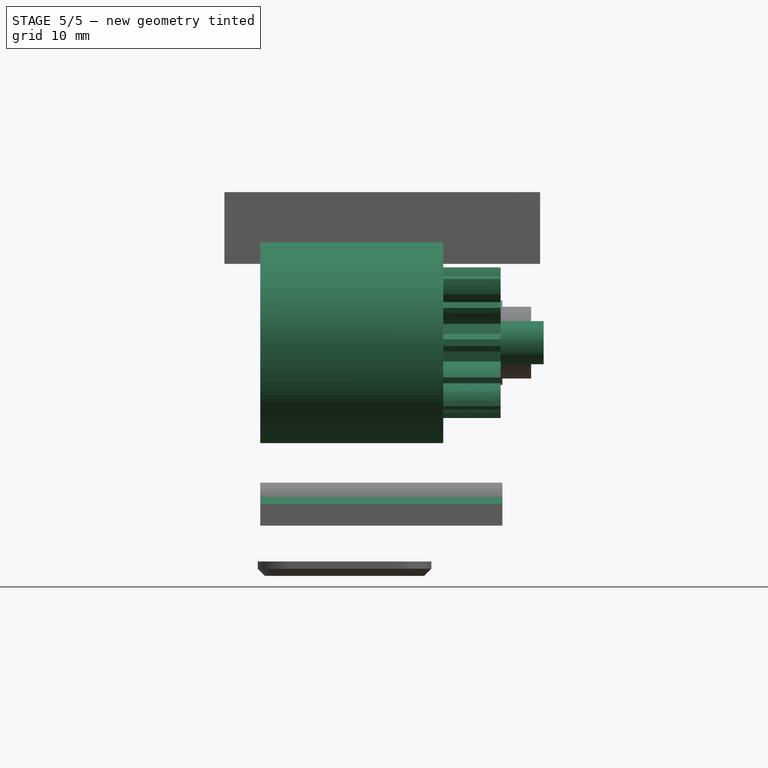
[diagram: stage 5 of 5 — front view after this stage's code; geometry added in this stage tinted green]
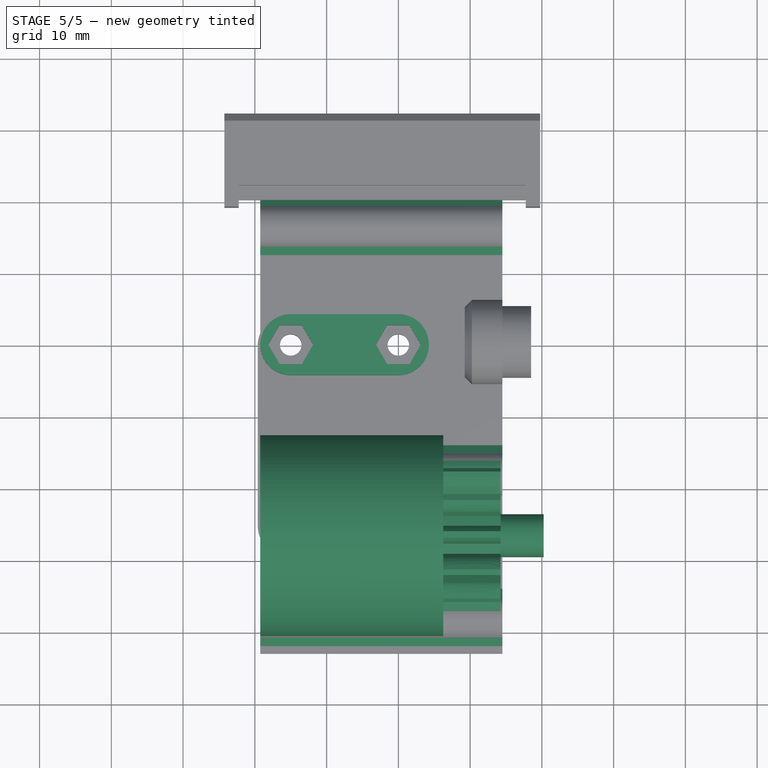
[diagram: stage 5 of 5 — top view after this stage's code; geometry added in this stage tinted green]
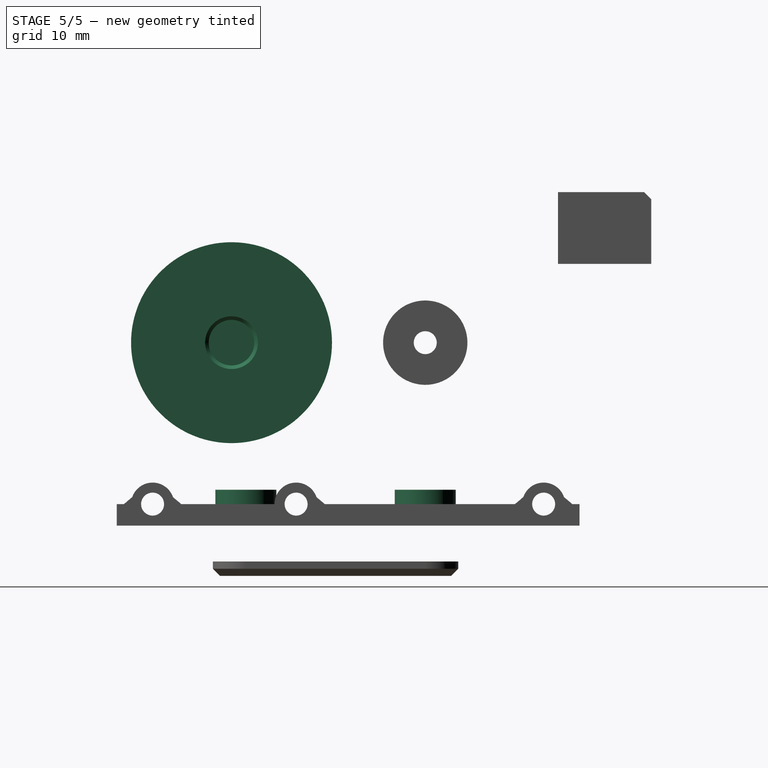
[diagram: stage 5 of 5 — right view after this stage's code; geometry added in this stage tinted green]
FEATURE [PartDesign::Plane] DatumPlane001  label="outer_face"
  AttachmentSupport = -> [Pocket]
  FixShape = 1
  InvalidShape = false
  Length = 10
  MapMode = 5
  MinimumLength = 10
  MinimumWidth = 10
  Placement = pos=(14.25,-1.6e-15,3.2e-15) rot=(0.57735,0.57735,0.57735;2.0944rad)
  ResizeMode = 0
  Support = -> [Pocket]
  TreeRank = 33
  ValidateShape = false
  Width = 10
FEATURE [Sketcher::SketchObject] Sketch005  label="gear_layout"
  ArcFitTolerance = 1e-06
  AttachmentSupport = -> [DatumPlane001]
  ExternalBSplineMaxDegree = 5
  ExternalBSplineTolerance = 0.0001
  FixShape = 1
  FullyConstrained = true
  InternalTolerance = 1e-06
  InvalidShape = false
  MakeInternals = false
  MapMode = 5
  Placement = pos=(14.25,-1.6e-15,3.2e-15) rot=(0.57735,0.57735,0.57735;2.0944rad)
  Support = -> [DatumPlane001]
  TreeRank = 34
  ValidateShape = false
  expr: Constraints.dw = <<big_gear>>.dw
  expr: Constraints[4] = .Constraints.dw / 2
  sketch-geometry (4):
    g0: Circle CenterX=0 CenterY=0 CenterZ=0 NormalX=0 NormalY=0 NormalZ=1 AngleXU=0 Radius=18
    g1: Circle CenterX=-27 CenterY=0 CenterZ=0 NormalX=0 NormalY=0 NormalZ=1 AngleXU=0 Radius=9
    g2: LineSegment StartX=-27 StartY=0 StartZ=0 EndX=0 EndY=0 EndZ=0
    g3: LineSegment StartX=0 StartY=-18 StartZ=0 EndX=0 EndY=-21 EndZ=0
  constraints (11):
    c: Coincident(g0,g-1)
    c: Diameter(g0) = 36  'dw'
    c: PointOnObject(g1,g-1)
    c: Tangent(g1,g0)
    c: Diameter(g1) = 18
    c: Coincident(g2,g1)
    c: Coincident(g2,g0)
    c: PointOnObject(g3,g0)
    c: Vertical(g3)
    c: PointOnObject(g3,g-2)
    c: DistanceY(g3,g3) = 3
FEATURE [PartDesign::Plane] DatumPlane002  label="pinion_start"
  AttachmentSupport = -> [Sketch005,YZ_Plane001]
  FixShape = 1
  InvalidShape = false
  Length = 19.2122
  MapMode = 6
  MinimumLength = 10
  MinimumWidth = 10
  Placement = pos=(14.25,-27,3.2e-15) rot=(0,1,0;1.5708rad)
  ResizeMode = 0
  Support = -> [Sketch005,YZ_Plane001]
  TreeRank = 35
  ValidateShape = false
  Width = 19.4098
FEATURE [PartDesign::FeaturePython] InvoluteGear001  label="small_gear"  # WARN: FeaturePython — macro-defined, semantics opaque (R4)
  AttacherType = Attacher::AttachEngine3D
  AttachmentSupport = -> [DatumPlane002]
  FixShape = 1
  InvalidShape = false
  MapMode = 5
  NewSolid = false
  Placement = pos=(14.25,-27,3.2e-15) rot=(0,-1,0;1.5708rad)
  Support = -> [DatumPlane002]
  Suppress = false
  TreeRank = 36
  ValidateShape = false
  angular_backlash = 0
  backlash = 0
  beta = 0
  clearance = 0.25
  da = 21
  df = 14.25
  double_helix = true
  dw = 18
  head = 0
  head_fillet = 0
  height = 8
  module = 1.5
  numpoints = 6
  pressure_angle = 20
  properties_from_tool = false
  reversed_backlash = false
  root_fillet = 0
  shift = 0
  simple = false
  teeth = 12
  transverse_pitch = 4.71239
  traverse_module = 1.5
  undercut = false
  version = 0.0.4
  expr: angular_backlash = backlash / dw * 360° / pi
  expr: beta = <<big_gear>>.beta
  expr: height = <<big_gear>>.height
  expr: module = <<big_gear>>.module
  expr: teeth = <<big_gear>>.teeth / 2
FEATURE [Sketcher::SketchObject] Sketch006
  ArcFitTolerance = 1e-06
  AttachmentSupport = -> [InvoluteGear001]
  ExternalBSplineMaxDegree = 5
  ExternalBSplineTolerance = 0.0001
  FixShape = 1
  FullyConstrained = true
  InternalTolerance = 1e-06
  InvalidShape = false
  MakeInternals = false
  MapMode = 5
  Placement = pos=(6.25,-27,1.4e-15) rot=(0,-1,0;1.5708rad)
  Support = -> [InvoluteGear001]
  TreeRank = 37
  ValidateShape = false
  sketch-geometry (4):
    g0: ArcOfCircle CenterX=0 CenterY=0 CenterZ=0 NormalX=0 NormalY=0 NormalZ=1 AngleXU=0 Radius=4.075 StartAngle=2.08402 EndAngle=4.19916
    g1: LineSegment StartX=-2.00078 StartY=3.55 StartZ=0 EndX=2.00078 EndY=3.55 EndZ=0
    g2: LineSegment StartX=-2.00078 StartY=-3.55 StartZ=0 EndX=2.00078 EndY=-3.55 EndZ=0
    g3: ArcOfCircle CenterX=0 CenterY=0 CenterZ=0 NormalX=0 NormalY=0 NormalZ=1 AngleXU=0 Radius=4.075 StartAngle=5.22561 EndAngle=7.34076
  constraints (12):
    c: Coincident(g0,g-1)
    c: Diameter(g0) = 8.15
    c: Horizontal(g1)
    c: Horizontal(g2)
    c: DistanceY(g2,g1) = 7.1
    c: Vertical(g2,g1)
    c: Coincident(g3,g1)
    c: Coincident(g0,g1)
    c: Equal(g0,g3)
    c: Coincident(g0,g2)
    c: Coincident(g3,g2)
    c: Coincident(g0,g3)
FEATURE [PartDesign::Pocket] Pocket001
  AddSubType = 1
  AutoTaperInnerAngle = true
  BaseFeature = -> InvoluteGear001
  CheckUpToFaceLimits = true
  ClaimChildren = false
  Fit = 0
  FitJoin = 0
  FixShape = 1
  InnerFit = 0
  InnerFitJoin = 0
  InvalidShape = false
  Length = 3
  Length2 = 100
  Linearize = true
  NewSolid = false
  Profile = -> Sketch006
  Refine = true
  Suppress = false
  TaperInnerAngle = 0
  TaperInnerAngleRev = 0
  TreeRank = 38
  Type = 0
  ValidateShape = false
  _ProfileBasedVersion = 1
  _Version = 1
FEATURE [Sketcher::SketchObject] Sketch007
  ArcFitTolerance = 1e-06
  AttachmentSupport = -> [Pocket001]
  ExternalBSplineMaxDegree = 5
  ExternalBSplineTolerance = 0.0001
  ExternalGeometry = -> [Pocket001]
  FixShape = 1
  FullyConstrained = true
  InternalTolerance = 1e-06
  InvalidShape = false
  MakeInternals = false
  MapMode = 5
  Placement = pos=(9.25,-1e-15,2.1e-15) rot=(-0.57735,0.57735,0.57735;4.18879rad)
  Support = -> [Pocket001]
  TreeRank = 39
  ValidateShape = false
  sketch-geometry (1):
    g0: Circle CenterX=27 CenterY=-1e-16 CenterZ=0 NormalX=0 NormalY=0 NormalZ=1 AngleXU=0 Radius=3.175
  constraints (2):
    c: Coincident(g0,g-3)
    c: Diameter(g0) = 6.35
FEATURE [PartDesign::Pocket] Pocket002
  AddSubType = 1
  AutoTaperInnerAngle = true
  BaseFeature = -> Pocket001
  CheckUpToFaceLimits = true
  ClaimChildren = false
  Fit = 0
  FitJoin = 0
  FixShape = 1
  InnerFit = 0
  InnerFitJoin = 0
  InvalidShape = false
  Length = 5
  Length2 = 100
  Linearize = true
  NewSolid = false
  Profile = -> Sketch007
  Refine = true
  Suppress = false
  TaperInnerAngle = 0
  TaperInnerAngleRev = 0
  TreeRank = 40
  Type = 1
  ValidateShape = false
  _ProfileBasedVersion = 1
  _Version = 1
FEATURE [Part::SubShapeBinder] Import  label="Import(Pocket002)"
  BindCopyOnChange = 0
  BindMode = 0
  ClaimChildren = false
  Context = -> Body002 [Import.]
  EdgeTolerance = 1e-06
  FillStyle = 0
  FixShape = 1
  Fuse = false
  InvalidShape = false
  MakeFace = false
  MergeEdges = true
  OffsetFill = false
  OffsetIntersection = false
  OffsetJoinType = 0
  OffsetOpenResult = false
  Outline = false
  PartialLoad = false
  Relative = true
  SplitEdges = false
  Support = -> [Body001[Pocket002.]]
  TightBound = false
  TreeRank = 51
  ValidateShape = false
  _Version = 8
FEATURE [Sketcher::SketchObject] Sketch008
  ArcFitTolerance = 1e-06
  AttachmentSupport = -> [Import]
  ExternalBSplineMaxDegree = 5
  ExternalBSplineTolerance = 0.0001
  ExternalGeometry = -> [Import]
  FixShape = 1
  FullyConstrained = true
  InternalTolerance = 1e-06
  InvalidShape = false
  MakeInternals = false
  MapMode = 5
  Placement = pos=(9.25,-1e-15,2.1e-15) rot=(-0.57735,0.57735,0.57735;4.18879rad)
  Support = -> [Import]
  TreeRank = 52
  ValidateShape = false
  sketch-geometry (1):
    g0: Circle CenterX=27 CenterY=-1e-16 CenterZ=0 NormalX=0 NormalY=0 NormalZ=1 AngleXU=0 Radius=3.9
  constraints (2):
    c: Coincident(g0,g-3)
    c: Diameter(g0) = 7.8
FEATURE [PartDesign::Pad] Pad002
  AddSubType = 0
  AlongSketchNormal = false
  AutoTaperInnerAngle = true
  CheckUpToFaceLimits = true
  ClaimChildren = false
  Direction = (-1,1e-16,-4e-16)
  Fit = 0
  FitJoin = 0
  FixShape = 1
  InnerFit = 0
  InnerFitJoin = 0
  InvalidShape = false
  Length = 3
  Length2 = 100
  Linearize = true
  NewSolid = true
  Profile = -> Sketch008
  Refine = true
  Suppress = false
  TaperInnerAngle = 0
  TaperInnerAngleRev = 0
  TreeRank = 53
  Type = 0
  ValidateShape = false
  _ProfileBasedVersion = 1
FEATURE [Sketcher::SketchObject] Sketch009
  ArcFitTolerance = 1e-06
  AttachmentSupport = -> [Pad002]
  ExternalBSplineMaxDegree = 5
  ExternalBSplineTolerance = 0.0001
  ExternalGeometry = -> [Pad002]
  FixShape = 1
  FullyConstrained = true
  InternalTolerance = 1e-06
  InvalidShape = false
  MakeInternals = false
  MapMode = 5
  Placement = pos=(9.25,-5.6e-15,4.9e-15) rot=(0.57735,0.57735,0.57735;2.0944rad)
  Support = -> [Pad002]
  TreeRank = 54
  ValidateShape = false
  sketch-geometry (1):
    g0: Circle CenterX=-27 CenterY=-4e-16 CenterZ=0 NormalX=0 NormalY=0 NormalZ=1 AngleXU=0 Radius=3
  constraints (2):
    c: Coincident(g0,g-3)
    c: Diameter(g0) = 6
FEATURE [PartDesign::Pad] Pad003
  AddSubType = 0
  AlongSketchNormal = false
  AutoTaperInnerAngle = true
  BaseFeature = -> Pad002
  CheckUpToFaceLimits = true
  ClaimChildren = false
  Direction = (1,-6e-16,3e-16)
  Fit = 0
  FitJoin = 0
  FixShape = 1
  InnerFit = 0
  InnerFitJoin = 0
  InvalidShape = false
  Length = 11
  Length2 = 100
  Linearize = true
  NewSolid = false
  Profile = -> Sketch009
  Refine = true
  Suppress = false
  TaperInnerAngle = 0
  TaperInnerAngleRev = 0
  TreeRank = 55
  Type = 0
  ValidateShape = false
  _ProfileBasedVersion = 1
FEATURE [Sketcher::SketchObject] Sketch010
  ArcFitTolerance = 1e-06
  AttachmentSupport = -> [Pad003]
  ExternalBSplineMaxDegree = 5
  ExternalBSplineTolerance = 0.0001
  ExternalGeometry = -> [Pad003]
  FixShape = 1
  FullyConstrained = true
  InternalTolerance = 1e-06
  InvalidShape = false
  MakeInternals = false
  MapMode = 5
  Placement = pos=(6.25,-3.8e-15,3.3e-15) rot=(-0.57735,0.57735,0.57735;4.18879rad)
  Support = -> [Pad003]
  TreeRank = 56
  ValidateShape = false
  sketch-geometry (1):
    g0: Circle CenterX=27 CenterY=-3e-16 CenterZ=0 NormalX=0 NormalY=0 NormalZ=1 AngleXU=0 Radius=14
  constraints (2):
    c: Coincident(g0,g-3)
    c: Diameter(g0) = 28
FEATURE [PartDesign::Pad] Pad004
  AddSubType = 0
  AlongSketchNormal = false
  AutoTaperInnerAngle = true
  BaseFeature = -> Pad003
  CheckUpToFaceLimits = true
  ClaimChildren = false
  Direction = (-1,6e-16,-3e-16)
  Fit = 0
  FitJoin = 0
  FixShape = 1
  InnerFit = 0
  InnerFitJoin = 0
  InvalidShape = false
  Length = 25.5
  Length2 = 100
  Linearize = true
  NewSolid = false
  Profile = -> Sketch010
  Refine = true
  Suppress = false
  TaperInnerAngle = 0
  TaperInnerAngleRev = 0
  TreeRank = 57
  Type = 0
  ValidateShape = false
  _ProfileBasedVersion = 1
FEATURE [Sketcher::SketchObject] Sketch023
  ArcFitTolerance = 1e-06
  AttachmentSupport = -> [Pocket004]
  ExternalBSplineMaxDegree = 5
  ExternalBSplineTolerance = 0.0001
  ExternalGeometry = -> [Pocket004]
  FixShape = 1
  FullyConstrained = true
  InternalTolerance = 1e-06
  InvalidShape = false
  MakeInternals = false
  MapMode = 5
  Placement = pos=(7.5e-15,2.5e-15,-22.5) rot=(0,0,1;0rad)
  Support = -> [Pocket004]
  TreeRank = 143
  ValidateShape = false
  sketch-geometry (36):
    g0: LineSegment StartX=3.11769 StartY=0 StartZ=0 EndX=1.55885 EndY=2.7 EndZ=0
    g1: LineSegment StartX=1.55885 StartY=2.7 StartZ=0 EndX=-1.55885 EndY=2.7 EndZ=0
    g2: LineSegment StartX=-1.55885 StartY=2.7 StartZ=0 EndX=-3.11769 EndY=1.11e-14 EndZ=0
    g3: LineSegment StartX=-3.11769 StartY=1.11e-14 StartZ=0 EndX=-1.55885 EndY=-2.7 EndZ=0
    g4: LineSegment StartX=-1.55885 StartY=-2.7 StartZ=0 EndX=1.55885 EndY=-2.7 EndZ=0
    g5: LineSegment StartX=1.55885 StartY=-2.7 StartZ=0 EndX=3.11769 EndY=0 EndZ=0
    g6: Circle [constr] CenterX=0 CenterY=5.3e-15 CenterZ=0 NormalX=0 NormalY=0 NormalZ=1 AngleXU=0 Radius=3.11769
    g7: LineSegment StartX=-11.8823 StartY=0 StartZ=0 EndX=-13.4412 EndY=2.7 EndZ=0
    g8: LineSegment StartX=-13.4412 StartY=2.7 StartZ=0 EndX=-16.5588 EndY=2.7 EndZ=0
    g9: LineSegment StartX=-16.5588 StartY=2.7 StartZ=0 EndX=-18.1177 EndY=2.895e-13 EndZ=0
    g10: LineSegment StartX=-18.1177 StartY=2.895e-13 StartZ=0 EndX=-16.5588 EndY=-2.7 EndZ=0
    g11: LineSegment StartX=-16.5588 StartY=-2.7 StartZ=0 EndX=-13.4412 EndY=-2.7 EndZ=0
    g12: LineSegment StartX=-13.4412 StartY=-2.7 StartZ=0 EndX=-11.8823 EndY=0 EndZ=0
    g13: Circle [constr] CenterX=-15 CenterY=5.3e-15 CenterZ=0 NormalX=0 NormalY=0 NormalZ=1 AngleXU=0 Radius=3.11769
    g14: LineSegment StartX=-11.8823 StartY=-25 StartZ=0 EndX=-13.4412 EndY=-22.3 EndZ=0
    g15: LineSegment StartX=-13.4412 StartY=-22.3 StartZ=0 EndX=-16.5588 EndY=-22.3 EndZ=0
    g16: LineSegment StartX=-16.5588 StartY=-22.3 StartZ=0 EndX=-18.1177 EndY=-25 EndZ=0
    g17: LineSegment StartX=-18.1177 StartY=-25 StartZ=0 EndX=-16.5588 EndY=-27.7 EndZ=0
    g18: LineSegment StartX=-16.5588 StartY=-27.7 StartZ=0 EndX=-13.4412 EndY=-27.7 EndZ=0
    g19: LineSegment StartX=-13.4412 StartY=-27.7 StartZ=0 EndX=-11.8823 EndY=-25 EndZ=0
    g20: Circle [constr] CenterX=-15 CenterY=-25 CenterZ=0 NormalX=0 NormalY=0 NormalZ=1 AngleXU=0 Radius=3.11769
    g21: LineSegment StartX=3.11769 StartY=-25 StartZ=0 EndX=1.55885 EndY=-22.3 EndZ=0
    g22: LineSegment StartX=1.55885 StartY=-22.3 StartZ=0 EndX=-1.55885 EndY=-22.3 EndZ=0
    g23: LineSegment StartX=-1.55885 StartY=-22.3 StartZ=0 EndX=-3.11769 EndY=-25 EndZ=0
    g24: LineSegment StartX=-3.11769 StartY=-25 StartZ=0 EndX=-1.55885 EndY=-27.7 EndZ=0
    g25: LineSegment StartX=-1.55885 StartY=-27.7 StartZ=0 EndX=1.55885 EndY=-27.7 EndZ=0
    g26: LineSegment StartX=1.55885 StartY=-27.7 StartZ=0 EndX=3.11769 EndY=-25 EndZ=0
    g27: Circle [constr] CenterX=0 CenterY=-25 CenterZ=0 NormalX=0 NormalY=0 NormalZ=1 AngleXU=0 Radius=3.11769
    g28: ArcOfCircle CenterX=-15 CenterY=0 CenterZ=0 NormalX=0 NormalY=0 NormalZ=1 AngleXU=0 Radius=4.25 StartAngle=1.5708 EndAngle=4.71239
    g29: ArcOfCircle CenterX=0 CenterY=0 CenterZ=0 NormalX=0 NormalY=0 NormalZ=1 AngleXU=0 Radius=4.25 StartAngle=4.71239 EndAngle=7.85398
    g30: LineSegment StartX=-15 StartY=-4.25 StartZ=0 EndX=0 EndY=-4.25 EndZ=0
    g31: LineSegment StartX=0 StartY=4.25 StartZ=0 EndX=-15 EndY=4.25 EndZ=0
    g32: ArcOfCircle CenterX=-15 CenterY=-25 CenterZ=0 NormalX=0 NormalY=0 NormalZ=1 AngleXU=0 Radius=4.25 StartAngle=1.5708 EndAngle=4.71239
    g33: ArcOfCircle CenterX=0 CenterY=-25 CenterZ=0 NormalX=0 NormalY=0 NormalZ=1 AngleXU=0 Radius=4.25 StartAngle=4.71239 EndAngle=7.85398
    g34: LineSegment StartX=-15 StartY=-29.25 StartZ=0 EndX=0 EndY=-29.25 EndZ=0
    g35: LineSegment StartX=0 StartY=-20.75 StartZ=0 EndX=-15 EndY=-20.75 EndZ=0
  constraints (80):
    c: Coincident(g0,g1)
    c: Coincident(g1,g2)
    c: Coincident(g2,g3)
    c: Coincident(g3,g4)
    c: Coincident(g4,g5)
    c: Coincident(g5,g0)
    c: Equal(g0, g1-g5) x5
    c: PointOnObject(g0,g6)
    c: PointOnObject(g1,g6)
    c: PointOnObject(g2,g6)
    c: PointOnObject(g3,g6)
    c: PointOnObject(g4,g6)
    c: PointOnObject(g5,g6)
    c: Coincident(g6,g-3)
    c: PointOnObject(g5,g-1)
    c: Coincident(g7,g8)
    c: Coincident(g8,g9)
    c: Coincident(g9,g10)
    c: Coincident(g10,g11)
    c: Coincident(g11,g12)
    c: Coincident(g12,g7)
    c: Equal(g7, g8-g12) x5
    c: PointOnObject(g7,g13)
    c: PointOnObject(g8,g13)
    c: PointOnObject(g9,g13)
    c: PointOnObject(g10,g13)
    c: PointOnObject(g11,g13)
    c: PointOnObject(g12,g13)
    c: Coincident(g13,g-4)
    c: PointOnObject(g12,g-1)
    c: Coincident(g14,g15)
    c: Coincident(g15,g16)
    c: Coincident(g16,g17)
    c: Coincident(g17,g18)
    c: Coincident(g18,g19)
    c: Coincident(g19,g14)
    c: Equal(g14, g15-g19) x5
    c: PointOnObject(g14,g20)
    c: PointOnObject(g15,g20)
    c: PointOnObject(g16,g20)
    c: PointOnObject(g17,g20)
    c: PointOnObject(g18,g20)
    c: PointOnObject(g19,g20)
    c: Coincident(g20,g-5)
    c: Coincident(g21,g22)
    c: Coincident(g22,g23)
    c: Coincident(g23,g24)
    c: Coincident(g24,g25)
    c: Coincident(g25,g26)
    c: Coincident(g26,g21)
    c: Equal(g21, g22-g26) x5
    c: PointOnObject(g21,g27)
    c: PointOnObject(g22,g27)
    c: PointOnObject(g23,g27)
    c: PointOnObject(g24,g27)
    c: PointOnObject(g25,g27)
    c: PointOnObject(g26,g27)
    c: Coincident(g27,g-6)
    c: Horizontal(g15)
    c: Horizontal(g22)
    c: Equal(g22,g15)
    c: Equal(g15,g8)
    c: Equal(g8,g1)
    c: DistanceY(g11,g7) = 5.4
    c: Tangent(g28,g30) = -1.5708
    c: Tangent(g30,g29) = -1.5708
    c: Tangent(g29,g31) = -1.5708
    c: Tangent(g31,g28) = -1.5708
    c: Equal(g28,g29)
    c: Coincident(g28,g-4)
    c: Coincident(g29,g-3)
    c: Tangent(g32,g34) = -1.5708
    c: Tangent(g34,g33) = -1.5708
    c: Tangent(g33,g35) = -1.5708
    c: Tangent(g35,g32) = -1.5708
    c: Equal(g32,g33)
    c: Coincident(g32,g-5)
    c: Coincident(g33,g-6)
    c: Equal(g33,g29)
    c: Tangent(g28,g-7)
FEATURE [PartDesign::Pad] Pad015
  AddSubType = 0
  AlongSketchNormal = false
  AutoTaperInnerAngle = true
  BaseFeature = -> Pocket004
  CheckUpToFaceLimits = true
  ClaimChildren = false
  Direction = (-3e-16,-1e-16,1)
  Fit = 0
  FitJoin = 0
  FixShape = 1
  InnerFit = 0
  InnerFitJoin = 0
  InvalidShape = false
  Length = 2
  Length2 = 100
  Linearize = true
  NewSolid = false
  Profile = -> Sketch023
  Refine = true
  Suppress = false
  TaperInnerAngle = 0
  TaperInnerAngleRev = 0
  TreeRank = 144
  Type = 0
  ValidateShape = false
  _ProfileBasedVersion = 1
FEATURE [PartDesign::Chamfer] Chamfer001
  AddSubType = 0
  Angle = 45
  Base = -> Pocket002 [Edge80]
  BaseFeature = -> Pocket002
  ChamferType = 0
  FixShape = 1
  FlipDirection = false
  InvalidShape = false
  NewSolid = false
  Refine = true
  Size = 0.5
  Size2 = 1
  SupportTransform = false
  Suppress = false
  TreeRank = 152
  ValidateShape = false
FEATURE [PartDesign::Body] Body001  label="pinion"
  AutoGroupSolids = false
  ClaimAllChildren = false
  ExportMode = 0
  FixShape = 1
  Group = -> [DatumPlane001,Sketch005,DatumPlane002,InvoluteGear001,Sketch006,Pocket001,Sketch007,Pocket002,Chamfer001]
  InvalidShape = false
  Origin = -> Origin001
  Tip = -> Chamfer001
  TreeRank = 32
  ValidateShape = false
  _ExportChildren = -> [DatumPlane001,Sketch005,DatumPlane002,InvoluteGear001,Pocket001,Pocket002,Chamfer001]
  _GroupVersion = 1
FEATURE [Part::SubShapeBinder] Import013  label="Import013(axle_hole)"
  BindCopyOnChange = 0
  BindMode = 0
  ClaimChildren = false
  Context = -> Body005 [Import013.]
  EdgeTolerance = 1e-06
  FillStyle = 0
  FixShape = 1
  Fuse = false
  InvalidShape = false
  MakeFace = false
  MergeEdges = true
  OffsetFill = false
  OffsetIntersection = false
  OffsetJoinType = 0
  OffsetOpenResult = false
  Outline = false
  PartialLoad = false
  Relative = true
  SplitEdges = false
  Support = -> [Body[Pocket.]]
  TightBound = false
  TreeRank = 154
  ValidateShape = false
  _Version = 8
FEATURE [PartDesign::Chamfer] Chamfer002
  AddSubType = 0
  Angle = 45
  Base = -> Pad015 [Edge4,Edge2,Edge32,Edge46,Edge45]
  BaseFeature = -> Pad015
  ChamferType = 0
  FixShape = 1
  FlipDirection = false
  InvalidShape = false
  NewSolid = false
  Refine = true
  Size = 1
  Size2 = 1
  SupportTransform = false
  Suppress = false
  TreeRank = 155
  ValidateShape = false
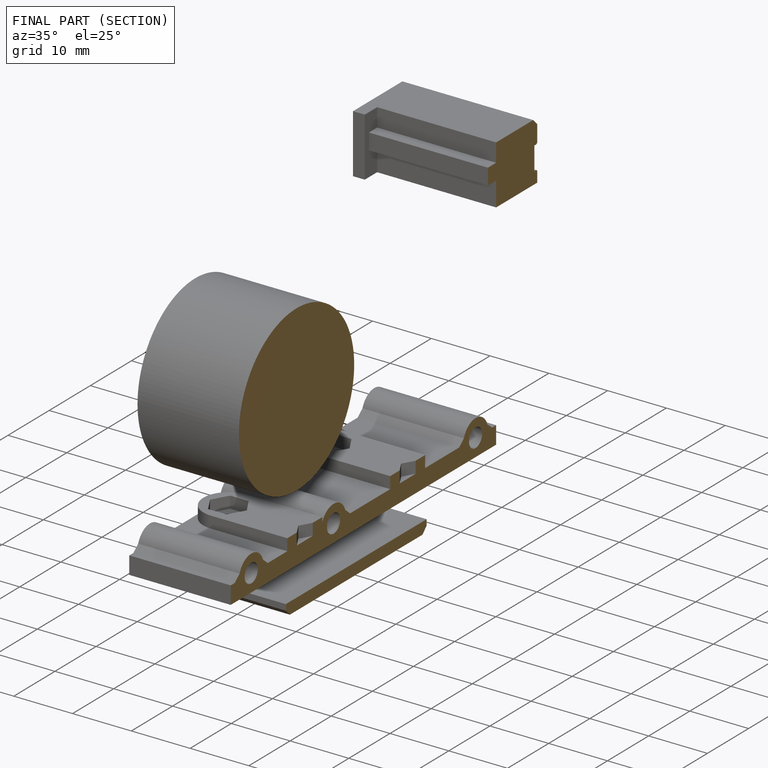
[diagram: finished part — half-section view (interior)]
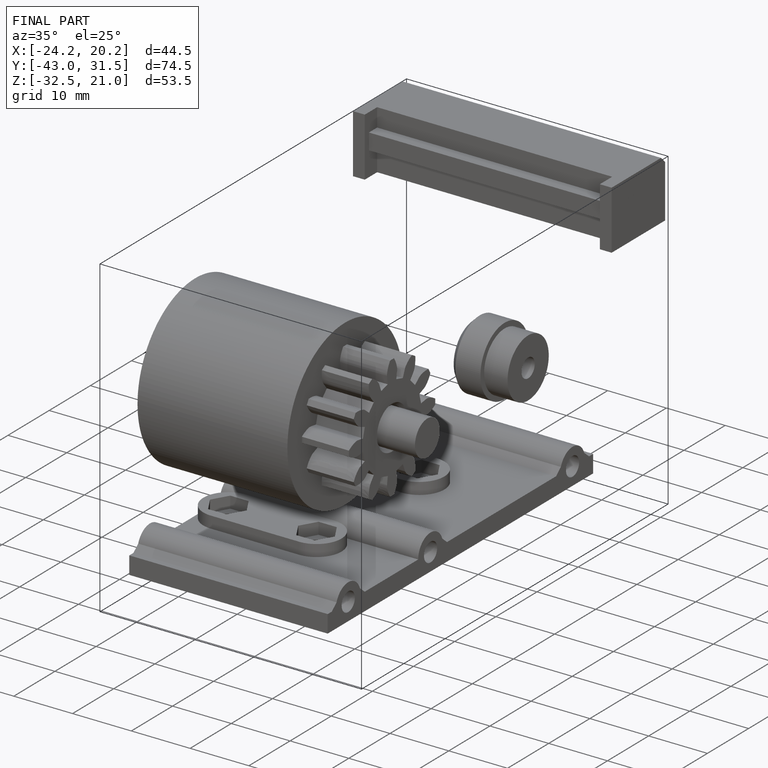
[diagram: finished part — iso view with bounding-box wireframe]
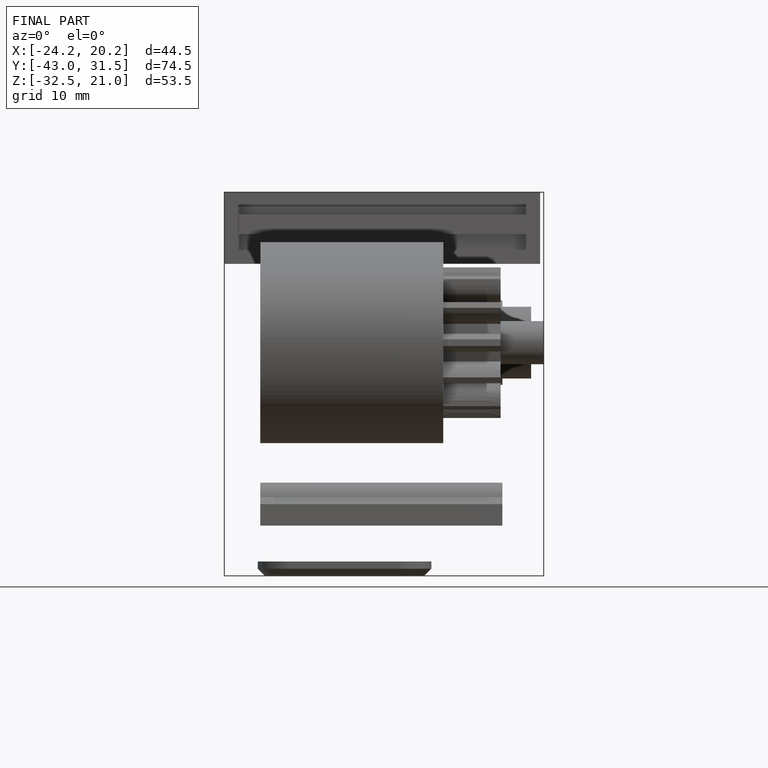
[diagram: finished part — front view with bounding-box wireframe]
